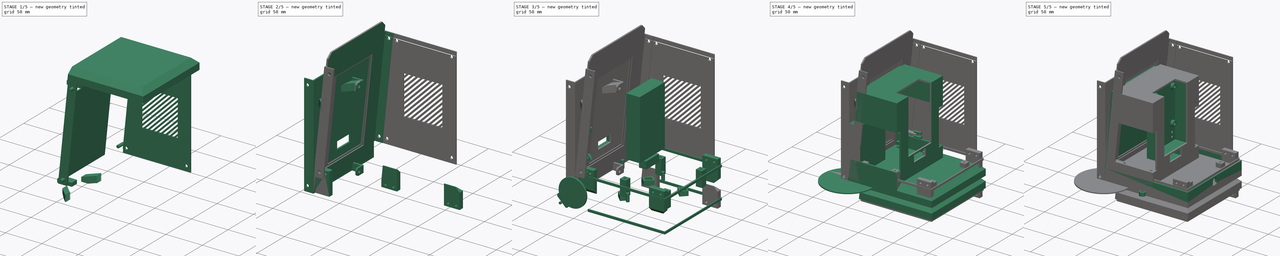
[diagram: build sequence overview — one tinted view per stage of 5, left to right]
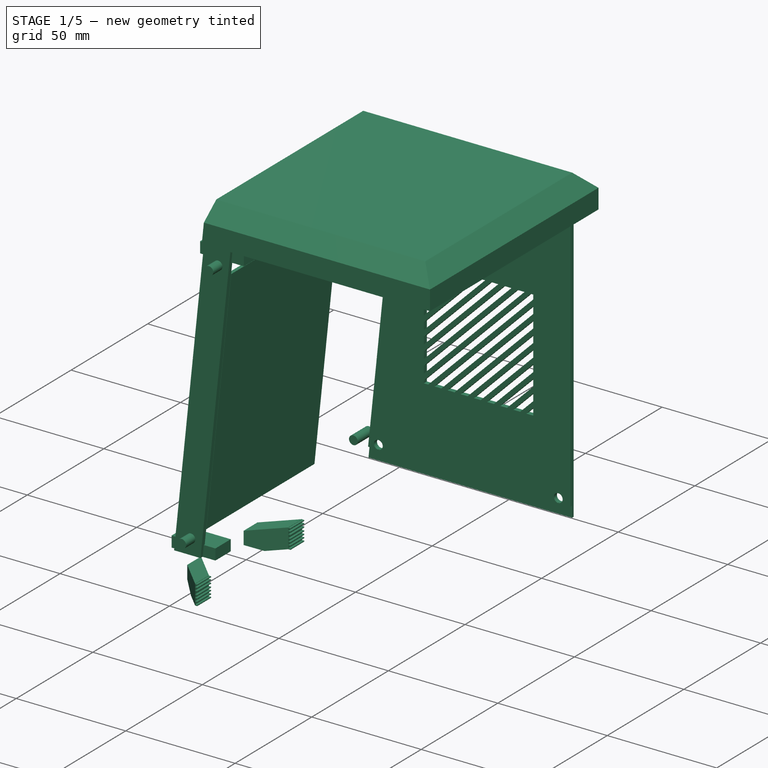
[diagram: stage 1 of 5 — iso view after this stage's code; geometry added in this stage tinted green]
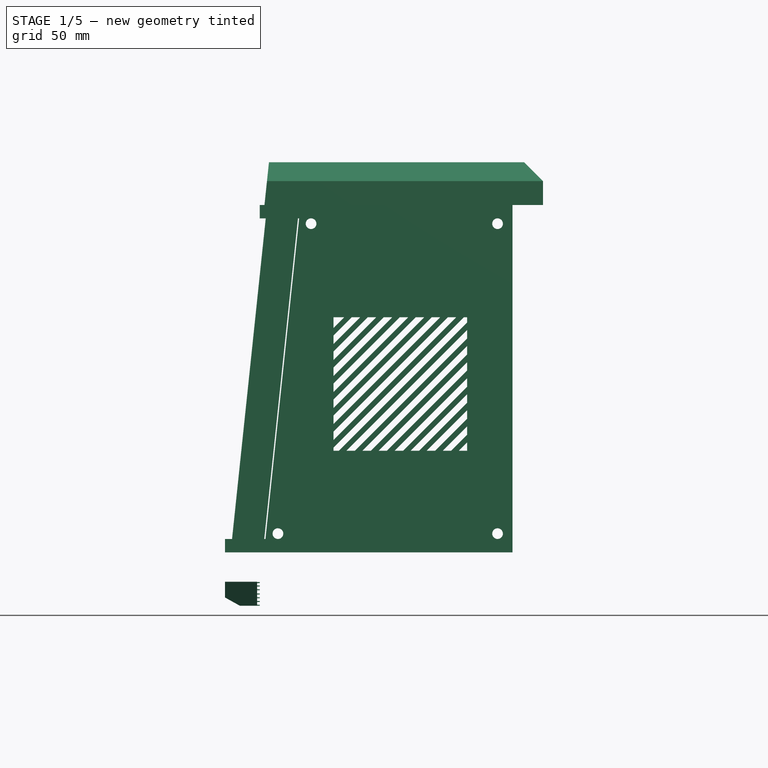
[diagram: stage 1 of 5 — front view after this stage's code; geometry added in this stage tinted green]
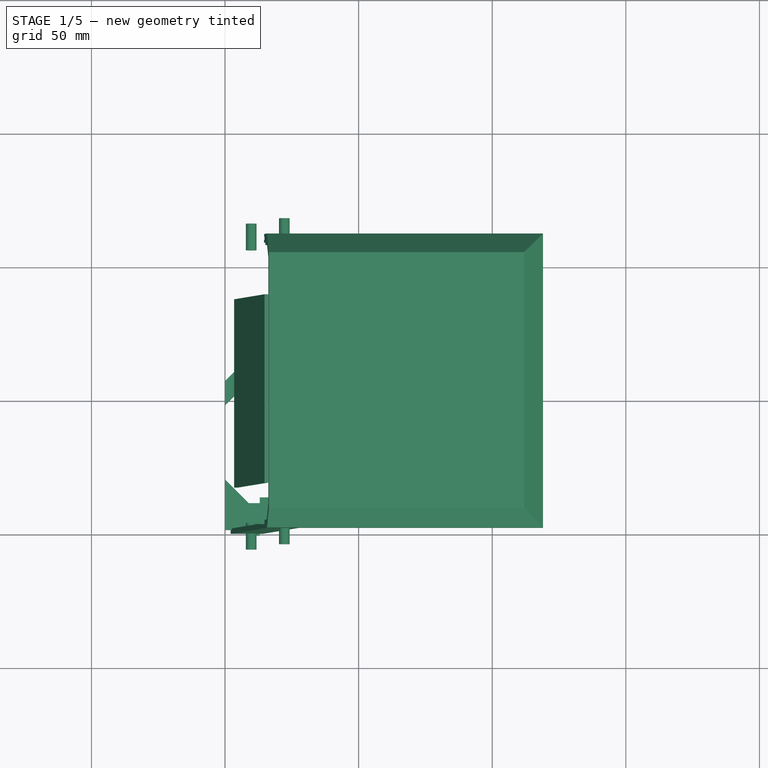
[diagram: stage 1 of 5 — top view after this stage's code; geometry added in this stage tinted green]
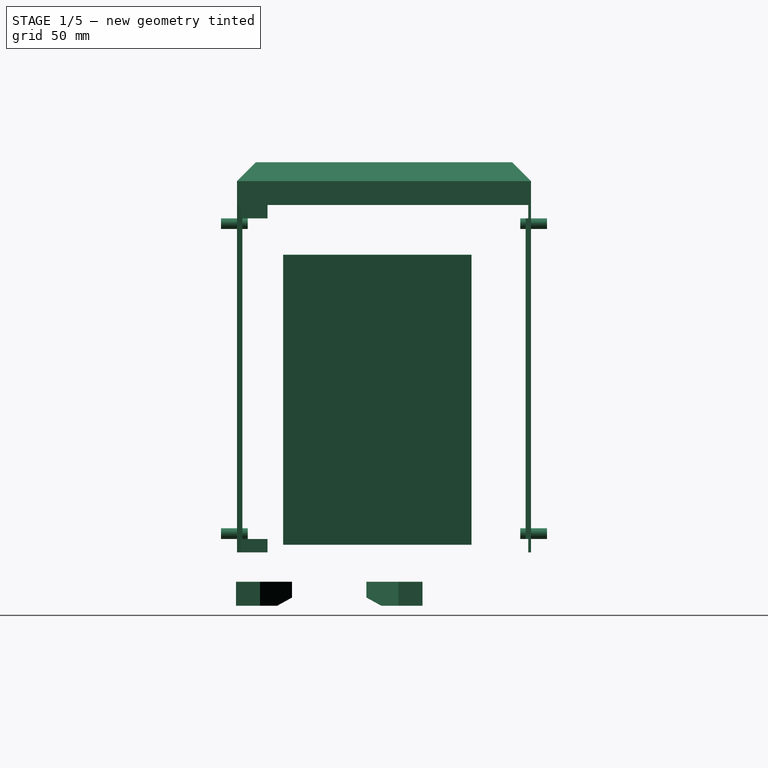
[diagram: stage 1 of 5 — right view after this stage's code; geometry added in this stage tinted green]
FCSTD DOCUMENT  (FreeCAD 0.18R16146 (Git))
Label: mark2
License: All rights reserved
LicenseURL: http://en.wikipedia.org/wiki/All_rights_reserved
objects: Part::Box×97, Part::Cut×69, Part::Cylinder×64, Part::MultiFuse×40, Sketcher::SketchObject×22, PartDesign::Pad×15, Part::Mirroring×15, Part::Feature×14, App::Part×13, PartDesign::Body×12, Part::Chamfer×10, Part::FeaturePython×8, Part::Fillet×7, Part::Wedge×3
note: 391 computed .brp shape members not serialized (recipe doc carries the construction recipe); baked Part::Feature solids carry a one-line shape summary decoded from their .brp

FEATURE [Part::Box] Box066  label="Cube057"
  AttacherType = Attacher::AttachEngine3D
  Height = 18
  Length = 117
  Placement = pos=(0,3,2) rot=(0,0,1;0rad)
  Width = 104
FEATURE [Part::Chamfer] Chamfer008
  Base = -> Box066
  Edges = 3 edges r=6.07: [Edge8,Edge9,Edge11]
FEATURE [Part::Box] Box067  label="Cube058"
  AttacherType = Attacher::AttachEngine3D
  Height = 20
  Length = 120
  Width = 110
FEATURE [Part::Chamfer] Chamfer009
  Base = -> Box067
  Edges = 3 edges r=7.07: [Edge8,Edge9,Edge11]
FEATURE [Part::Cut] Cut063  label="Boden_Cut002"
  Base = -> Chamfer009
  Tool = -> Chamfer008
FEATURE [Sketcher::SketchObject] Sketch014  label="Sketch015"
  MapMode = 5
  Placement = pos=(0,0,0) rot=(1,0,0;1.5708rad)
  Support = -> [XZ_Plane027]
FEATURE [Sketcher::SketchObject] Sketch015  label="Sketch016"
  MapMode = 5
  Placement = pos=(0,0,0) rot=(1,0,0;1.5708rad)
  Support = -> [XZ_Plane027]
FEATURE [Part::Feature] mirror004  label="Deckel002"
  shape: bbox 120 x 110 x 16 mm, 16 faces (baked)
FEATURE [Sketcher::SketchObject] Sketch017  label="Sketch018"
  Placement = pos=(0,0,-166) rot=(1,0,0;1.5708rad)
  sketch-geometry (3):
    g0: LineSegment StartX=0 StartY=0 StartZ=0 EndX=19.7877 EndY=188.268 EndZ=0
    g1: LineSegment StartX=19.7877 StartY=188.268 StartZ=0 EndX=0 EndY=188.268 EndZ=0
    g2: LineSegment StartX=0 StartY=188.268 StartZ=0 EndX=0 EndY=0 EndZ=0
  constraints (7):
    c: Coincident(g0,g1)
    c: Coincident(g1,g2)
    c: Coincident(g2,g0)
    c: Coincident(g0,g-1)
    c: Angle(g0,g2) = 0.10472
    c: Vertical(g2)
    c: Horizontal(g1)
FEATURE [PartDesign::Pad] Pad010
  Length = 110
  Length2 = 100
  Placement = pos=(0,0,-166) rot=(1,0,0;1.5708rad)
  Profile = -> Sketch017
  Reversed = true
  Type = 0
FEATURE [PartDesign::Body] Body008
  Group = -> [Pad010,Sketch014,Sketch015]
  Origin = -> Origin027
  Tip = -> Pad010
FEATURE [Part::Cut] Cut064  label="Deckel_Cut001"
  Base = -> mirror004
  Placement = pos=(-1,0,166) rot=(0,0,1;0rad)
  Tool = -> Body008
FEATURE [Sketcher::SketchObject] Sketch018  label="Sketch019"
  MapMode = 5
  Placement = pos=(0,0,0) rot=(1,0,0;1.5708rad)
  Support = -> [XZ_Plane026]
  sketch-geometry (4):
    g0: LineSegment StartX=0 StartY=0 StartZ=0 EndX=12.06 EndY=0 EndZ=0
    g1: LineSegment StartX=12.06 StartY=0 StartZ=0 EndX=28.1882 EndY=153.45 EndZ=0
    g2: LineSegment StartX=28.1882 StartY=153.45 StartZ=0 EndX=16.1282 EndY=153.45 EndZ=0
    g3: LineSegment StartX=16.1282 StartY=153.45 StartZ=0 EndX=0 EndY=0 EndZ=0
  constraints (10):
    c: Coincident(g0,g1)
    c: Coincident(g1,g2)
    c: Coincident(g2,g3)
    c: Coincident(g3,g0)
    c: Coincident(g0,g-1)
    c: Horizontal(g0)
    c: Horizontal(g2)
    c: Angle(g3,g-2) = 0.10472
    c: Parallel(g3,g1)
    c: Distance(g0) = 12.06
FEATURE [PartDesign::Pad] Pad011
  Length = 2
  Length2 = 100
  Placement = pos=(0,0,0) rot=(1,0,0;1.5708rad)
  Profile = -> Sketch018
  Reversed = true
  Type = 0
FEATURE [Part::FeaturePython] Cutout006  # WARN: FeaturePython — macro-defined, semantics opaque (R4)
  Base = -> Pad011
  Tolerance = 0
  Tool = -> Cut063
FEATURE [Part::Box] Box068  label="Cube059"
  AttacherType = Attacher::AttachEngine3D
  Height = 5
  Length = 20
  Placement = pos=(13,1.4,145) rot=(0,0,1;0rad)
  Width = 10
FEATURE [Part::Box] Box069  label="Cube060"
  AttacherType = Attacher::AttachEngine3D
  Height = 5
  Length = 20
  Placement = pos=(0,1.4,20) rot=(0,0,1;0rad)
  Width = 10
FEATURE [Part::MultiFuse] Fusion034
  Shapes = -> [Box069,Box068]
FEATURE [Part::Cylinder] Cylinder069  label="Front_Loch1"
  Angle = 360
  AttacherType = Attacher::AttachEngine3D
  Height = 10
  Placement = pos=(9.8,4,27) rot=(1,0,0;1.5708rad)
  Radius = 2
FEATURE [Part::Cylinder] Cylinder070  label="Front_Loch2"
  Angle = 360
  AttacherType = Attacher::AttachEngine3D
  Height = 10
  Placement = pos=(22.2,4,143) rot=(1,0,0;1.5708rad)
  Radius = 2
FEATURE [Part::MultiFuse] Fusion036  label="Front_Loch_R"
  Shapes = -> [Cylinder069,Cylinder070]
FEATURE [Part::Mirroring] Part__Mirroring007  label="Front_Loch_R (Mirror #11)"
  Base = (0,0,0)
  Normal = (0,1,0)
  Placement = pos=(0,110,0) rot=(0,0,1;0rad)
  Source = -> Fusion036
FEATURE [Part::MultiFuse] Fusion037  label="Front_Loecher"
  Shapes = -> [Part__Mirroring007,Fusion036]
FEATURE [Part::Box] Box070  label="Disp_Vertiefung"
  AttacherType = Attacher::AttachEngine3D
  Height = 109
  Length = 1.4
  Placement = pos=(3.4,17.25,23) rot=(0,1,0;0.10472rad)
  Width = 70.5
FEATURE [App::Part] Part012  label="Front"
  Group = -> [Box066,Cut065,Box070,Box069,Sketch018,Part__Mirroring007,Cutout004,Fusion035,Cut064,Part__Mirroring006,Cut066,Cylinder070,Box068,Cutout007,Chamfer008,Pad009,Fusion036,mirror004,Sketch013,Pad011,Body008,Cut063,Cutout005,Fusion037,Cylinder069,Fusion034,Chamfer009,Cutout006,Box067,Box071,Cut070,Cut071]
  Origin = -> Origin029
FEATURE [Sketcher::SketchObject] Sketch019  label="Sketch020"
  MapMode = 5
  Support = -> [XY_Plane030]
  sketch-geometry (4):
    g0: LineSegment StartX=0 StartY=20.5912 StartZ=0 EndX=12 EndY=8.59122 EndZ=0
    g1: LineSegment StartX=12 StartY=8.59122 StartZ=0 EndX=12 EndY=-0.408778 EndZ=0
    g2: LineSegment StartX=12 StartY=-0.408778 StartZ=0 EndX=0 EndY=11.5912 EndZ=0
    g3: LineSegment StartX=0 StartY=11.5912 StartZ=0 EndX=0 EndY=20.5912 EndZ=0
  constraints (11):
    c: Coincident(g0,g1)
    c: Coincident(g1,g2)
    c: Coincident(g2,g3)
    c: Coincident(g3,g0)
    c: Vertical(g3)
    c: Parallel(g0,g2)
    c: Angle(g3,g0) = 0.785398
    c: Parallel(g3,g1)
    c: Distance(g1) = 9
    c: DistanceX(g2,g2) = 12
    c: DistanceX(g-1,g0) = 0
FEATURE [PartDesign::Pad] Pad012
  Length = 9
  Length2 = 100
  Profile = -> Sketch019
  Type = 0
FEATURE [PartDesign::Body] Body009
  Group = -> [Sketch019,Pad012]
  Origin = -> Origin030
  Tip = -> Pad012
FEATURE [Sketcher::SketchObject] Sketch020  label="Sketch021"
  MapMode = 5
  Placement = pos=(0,0,0) rot=(1,0,0;1.5708rad)
  Support = -> [XZ_Plane033]
  sketch-geometry (3):
    g0: LineSegment StartX=0 StartY=0 StartZ=0 EndX=0 EndY=3.09591 EndZ=0
    g1: LineSegment StartX=0 StartY=3.09591 StartZ=0 EndX=5.59403 EndY=0 EndZ=0
    g2: LineSegment StartX=5.59403 StartY=0 StartZ=0 EndX=0 EndY=0 EndZ=0
  constraints (6):
    c: Coincident(g0,g1)
    c: Coincident(g1,g2)
    c: Coincident(g2,g0)
    c: Coincident(g0,g-1)
    c: Vertical(g0)
    c: Horizontal(g2)
FEATURE [PartDesign::Pad] Pad013
  Length = 21
  Length2 = 100
  Placement = pos=(0,0,0) rot=(1,0,0;1.5708rad)
  Profile = -> Sketch020
  Reversed = true
  Type = 0
FEATURE [PartDesign::Body] Body010
  Group = -> [Sketch020,Pad013]
  Origin = -> Origin031
  Tip = -> Pad013
FEATURE [Part::Cut] Cut072
  Base = -> Body009
  Tool = -> Body010
FEATURE [Part::Box] Box076  label="Cube067"
  AttacherType = Attacher::AttachEngine3D
  Height = 0.4
  Length = 1
  Placement = pos=(12,-0.4,0) rot=(0,0,1;0rad)
  Width = 9
FEATURE [Part::Box] Box077  label="Cube068"
  AttacherType = Attacher::AttachEngine3D
  Height = 0.4
  Length = 1
  Placement = pos=(12,-0.4,1.4) rot=(0,0,1;0rad)
  Width = 9
FEATURE [Part::Box] Box078  label="Cube069"
  AttacherType = Attacher::AttachEngine3D
  Height = 0.4
  Length = 1
  Placement = pos=(12,-0.4,2.8) rot=(0,0,1;0rad)
  Width = 9
FEATURE [Part::Box] Box079  label="Cube070"
  AttacherType = Attacher::AttachEngine3D
  Height = 0.4
  Length = 1
  Placement = pos=(12,-0.4,4.2) rot=(0,0,1;0rad)
  Width = 9
FEATURE [Part::Box] Box080  label="Cube071"
  AttacherType = Attacher::AttachEngine3D
  Height = 0.4
  Length = 1
  Placement = pos=(12,-0.4,5.8) rot=(0,0,1;0rad)
  Width = 9
FEATURE [Part::Box] Box081  label="Cube072"
  AttacherType = Attacher::AttachEngine3D
  Height = 0.4
  Length = 1
  Placement = pos=(12,-0.4,8.5) rot=(0,0,1;0rad)
  Width = 9
FEATURE [Part::Box] Box082  label="Cube073"
  AttacherType = Attacher::AttachEngine3D
  Height = 0.4
  Length = 1
  Placement = pos=(12,-0.4,7.2) rot=(0,0,1;0rad)
  Width = 9
FEATURE [Part::MultiFuse] Fusion041  label="Support001"
  Shapes = -> [Cut072,Box080,Box082,Box076,Box079,Box081,Box077,Box078]
FEATURE [Part::Mirroring] Part__Mirroring009  label="Support002"
  Base = (0,0,0)
  Normal = (0,1,0)
  Placement = pos=(0,69,0) rot=(0,0,1;0rad)
  Source = -> Fusion041
FEATURE [Part::MultiFuse] Fusion042  label="Support1_2"
  Shapes = -> [Part__Mirroring009,Fusion041]
FEATURE [App::Part] Part011  label="Disp"
  Group = -> [Fusion040,Box073,Cut069,Fusion039,Cylinder072,Fillet007,Box075,Fillet008,Cut068,Cylinder071,Box074,Box072,Fusion038,Part__Mirroring008,Body009,Body010,Cut072,Box076,Box077,Box078,Box079,Box080,Box081,Box082,Fusion041,Part__Mirroring009,Fusion042,Part__Mirroring010]
  Origin = -> Origin028
  Placement = pos=(2.5,18.25,24) rot=(0,1,0;0.10472rad)
FEATURE [Part::Box] Box083  label="Cube074"
  AttacherType = Attacher::AttachEngine3D
  Height = 130
  Length = 2
  Width = 93
FEATURE [PartDesign::Body] Body011
  Origin = -> Origin034
FEATURE [Sketcher::SketchObject] Sketch021  label="Sketch022"
  MapMode = 5
  Placement = pos=(0,0,0) rot=(0.57735,0.57735,0.57735;2.0944rad)
  Support = -> [YZ_Plane034]
  sketch-geometry (3):
    g0: LineSegment StartX=0 StartY=0 StartZ=0 EndX=13.6615 EndY=129.981 EndZ=0
    g1: LineSegment StartX=13.6615 StartY=129.981 StartZ=0 EndX=0 EndY=129.981 EndZ=0
    g2: LineSegment StartX=0 StartY=129.981 StartZ=0 EndX=0 EndY=0 EndZ=0
  constraints (7):
    c: Coincident(g0,g1)
    c: Coincident(g1,g2)
    c: Coincident(g2,g0)
    c: Coincident(g0,g-1)
    c: Vertical(g2)
    c: Horizontal(g1)
    c: Angle(g0,g2) = 0.10472
FEATURE [PartDesign::Pad] Pad014
  Length = 5
  Length2 = 100
  Placement = pos=(0,0,0) rot=(0.57735,0.57735,0.57735;2.0944rad)
  Profile = -> Sketch021
  Type = 0
FEATURE [Part::Cut] Cut073  label="Seitenwand"
  Base = -> Box083
  Tool = -> Pad014
FEATURE [Part::Box] Box084  label="Cube075"
  AttacherType = Attacher::AttachEngine3D
  Height = 80
  Length = 2
  Placement = pos=(0,0,0) rot=(-1,0,0;0.785398rad)
  Width = 2
FEATURE [Part::Box] Box085  label="Cube076"
  AttacherType = Attacher::AttachEngine3D
  Height = 80
  Length = 2
  Placement = pos=(0,6,0) rot=(-1,0,0;0.785398rad)
  Width = 2
FEATURE [Part::Box] Box086  label="Cube077"
  AttacherType = Attacher::AttachEngine3D
  Height = 80
  Length = 2
  Placement = pos=(0,12,0) rot=(-1,0,0;0.785398rad)
  Width = 2
FEATURE [Part::Box] Box087  label="Cube078"
  AttacherType = Attacher::AttachEngine3D
  Height = 80
  Length = 2
  Placement = pos=(0,18,0) rot=(-1,0,0;0.785398rad)
  Width = 2
FEATURE [Part::Box] Box088  label="Cube079"
  AttacherType = Attacher::AttachEngine3D
  Height = 80
  Length = 2
  Placement = pos=(0,24,0) rot=(-1,0,0;0.785398rad)
  Width = 2
FEATURE [Part::Box] Box089  label="Cube080"
  AttacherType = Attacher::AttachEngine3D
  Height = 80
  Length = 2
  Placement = pos=(0,30,0) rot=(-1,0,0;0.785398rad)
  Width = 2
FEATURE [Part::Box] Box090  label="Cube081"
  AttacherType = Attacher::AttachEngine3D
  Height = 80
  Length = 2
  Placement = pos=(0,36,0) rot=(-1,0,0;0.785398rad)
  Width = 2
FEATURE [Part::Box] Box091  label="Cube082"
  AttacherType = Attacher::AttachEngine3D
  Height = 80
  Length = 2
  Placement = pos=(0,42,0) rot=(-1,0,0;0.785398rad)
  Width = 2
FEATURE [Part::Box] Box092  label="Cube083"
  AttacherType = Attacher::AttachEngine3D
  Height = 80
  Length = 2
  Placement = pos=(0,48,0) rot=(-1,0,0;0.785398rad)
  Width = 2
FEATURE [Part::Box] Box093  label="Cube084"
  AttacherType = Attacher::AttachEngine3D
  Height = 80
  Length = 2
  Placement = pos=(0,54,0) rot=(-1,0,0;0.785398rad)
  Width = 2
FEATURE [Part::Box] Box094  label="Cube085"
  AttacherType = Attacher::AttachEngine3D
  Height = 80
  Length = 2
  Placement = pos=(0,60,0) rot=(-1,0,0;0.785398rad)
  Width = 2
FEATURE [Part::Box] Box095  label="Cube086"
  AttacherType = Attacher::AttachEngine3D
  Height = 80
  Length = 2
  Placement = pos=(0,66,0) rot=(-1,0,0;0.785398rad)
  Width = 2
FEATURE [Part::Box] Box096  label="Cube087"
  AttacherType = Attacher::AttachEngine3D
  Height = 80
  Length = 2
  Placement = pos=(0,72,0) rot=(-1,0,0;0.785398rad)
  Width = 2
FEATURE [Part::Box] Box097  label="Cube088"
  AttacherType = Attacher::AttachEngine3D
  Height = 80
  Length = 2
  Placement = pos=(0,78,0) rot=(-1,0,0;0.785398rad)
  Width = 2
FEATURE [Part::Box] Box098  label="Cube089"
  AttacherType = Attacher::AttachEngine3D
  Height = 50
  Length = 2
  Placement = pos=(0,46,0) rot=(0,0,1;0rad)
  Width = 50
FEATURE [Part::Box] Box099  label="Cube090"
  AttacherType = Attacher::AttachEngine3D
  Height = 80
  Length = 2
  Placement = pos=(0,84,0) rot=(-1,0,0;0.785398rad)
  Width = 2
FEATURE [Part::Box] Box100  label="Cube091"
  AttacherType = Attacher::AttachEngine3D
  Height = 80
  Length = 2
  Placement = pos=(0,90,0) rot=(-1,0,0;0.785398rad)
  Width = 2
FEATURE [Part::Box] Box101  label="Cube092"
  AttacherType = Attacher::AttachEngine3D
  Height = 80
  Length = 2
  Placement = pos=(0,96,0) rot=(-1,0,0;0.785398rad)
  Width = 2
FEATURE [Part::MultiFuse] Fusion043
  Shapes = -> [Box099,Box100,Box101,Box097,Box096,Box095,Box094,Box093,Box092,Box091,Box090,Box089,Box088,Box087,Box086,Box084,Box085]
FEATURE [Part::Cut] Cut074  label="Schlitze"
  Base = -> Box098
  Placement = pos=(0,-20,38) rot=(0,0,1;0rad)
  Tool = -> Fusion043
FEATURE [Part::Cut] Cut075  label="Seitenwand_Schlitze"
  Base = -> Cut073
  Tool = -> Cut074
FEATURE [Part::Box] Box102  label="Cube093"
  AttacherType = Attacher::AttachEngine3D
  Height = 5
  Length = 1
  Width = 100
FEATURE [Part::Box] Box103  label="Cube094"
  AttacherType = Attacher::AttachEngine3D
  Height = 5
  Length = 1
  Placement = pos=(0,0,125) rot=(0,0,1;0rad)
  Width = 100
FEATURE [Part::MultiFuse] Fusion044  label="Anschlag"
  Shapes = -> [Box102,Box103]
FEATURE [Part::Cut] Cut076  label="Seitenw_Schlitze_Anschlag"
  Base = -> Cut075
  Placement = pos=(14.6,2,20) rot=(0,0,-1;1.5708rad)
  Tool = -> Fusion044
FEATURE [Part::Cylinder] Cylinder073  label="Cylinder042"
  Angle = 360
  AttacherType = Attacher::AttachEngine3D
  Height = 10
  Placement = pos=(19.8,0,27) rot=(1,0,0;1.5708rad)
  Radius = 2
FEATURE [Part::Cylinder] Cylinder074  label="Cylinder043"
  Angle = 360
  AttacherType = Attacher::AttachEngine3D
  Height = 10
  Placement = pos=(102,0,27) rot=(1,0,0;1.5708rad)
  Radius = 2
FEATURE [Part::Cylinder] Cylinder075  label="Cylinder044"
  Angle = 360
  AttacherType = Attacher::AttachEngine3D
  Height = 10
  Placement = pos=(102,0,143) rot=(1,0,0;1.5708rad)
  Radius = 2
FEATURE [Part::Cylinder] Cylinder076  label="Cylinder045"
  Angle = 360
  AttacherType = Attacher::AttachEngine3D
  Height = 10
  Placement = pos=(32.2,0,143) rot=(1,0,0;1.5708rad)
  Radius = 2
FEATURE [Part::MultiFuse] Fusion045  label="Loecher"
  Placement = pos=(0,5,0) rot=(0,0,1;0rad)
  Shapes = -> [Cylinder076,Cylinder074,Cylinder073,Cylinder075]
FEATURE [Part::Cut] Cut077  label="Seitenw_Schlitze_Anschl_Loecher"
  Base = -> Cut076
  Tool = -> Fusion045
FEATURE [Part::Mirroring] Part__Mirroring011  label="Seitenw_Schlitze_Anschl_Loecher (Mirror #15)"
  Base = (0,0,0)
  Normal = (0,1,0)
  Placement = pos=(0,110,0) rot=(0,0,1;0rad)
  Source = -> Cut077
FEATURE [App::Part] Part013  label="Seite"
  Group = -> [Box083,Body011,Sketch021,Pad014,Cut073,Box093,Box095,Box097,Box096,Box098,Box100,Box092,Box089,Box090,Box101,Fusion043,Box087,Box085,Box084,Box088,Box094,Box091,Box099,Box086,Cut074,Cut075,Box103,Box102,Fusion044,Cut076,Cylinder073,Cylinder074,Cylinder075,Cylinder076,Fusion045,Cut077,Part__Mirroring011]
  Origin = -> Origin032
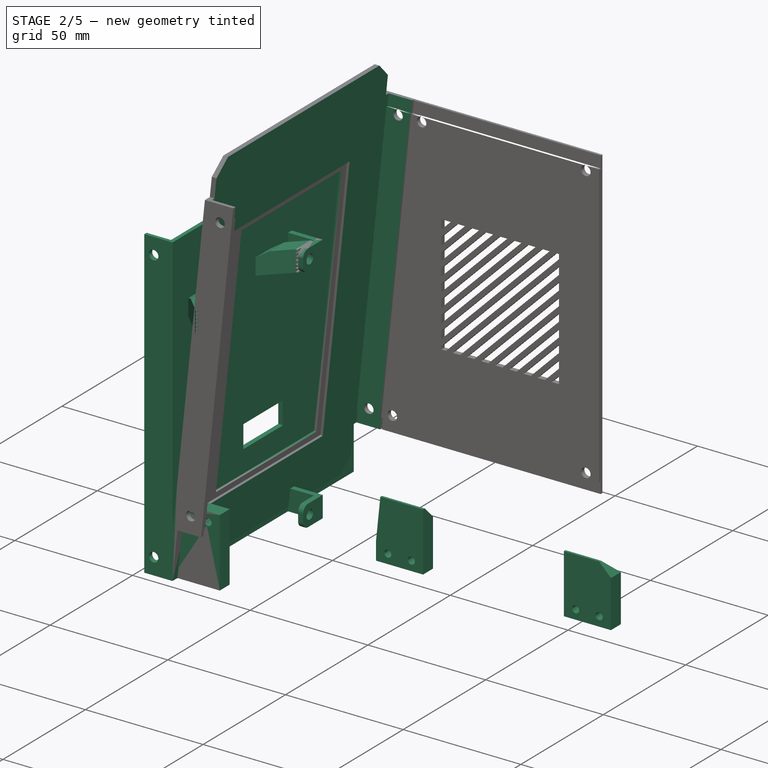
[diagram: stage 2 of 5 — iso view after this stage's code; geometry added in this stage tinted green]
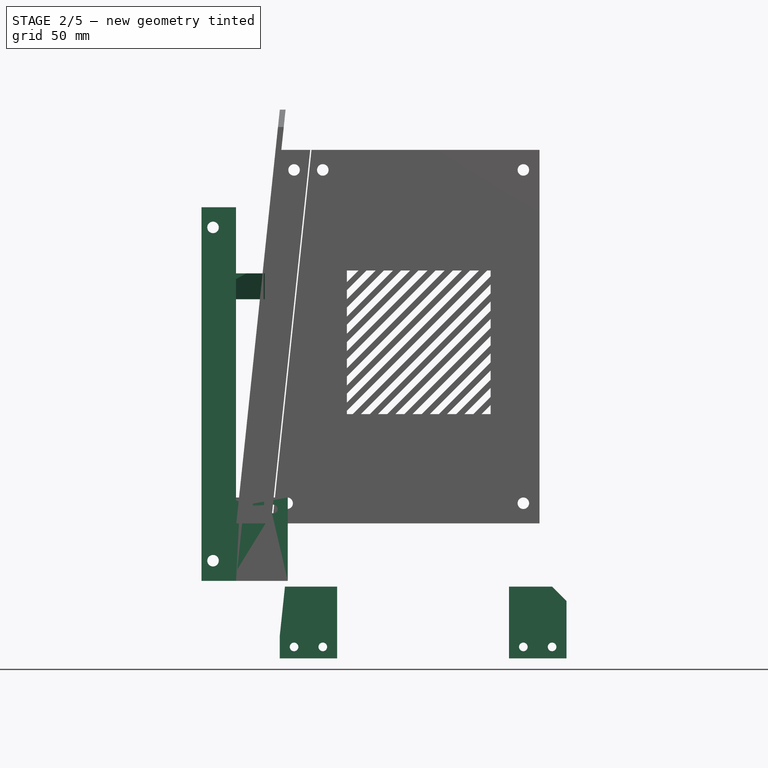
[diagram: stage 2 of 5 — front view after this stage's code; geometry added in this stage tinted green]
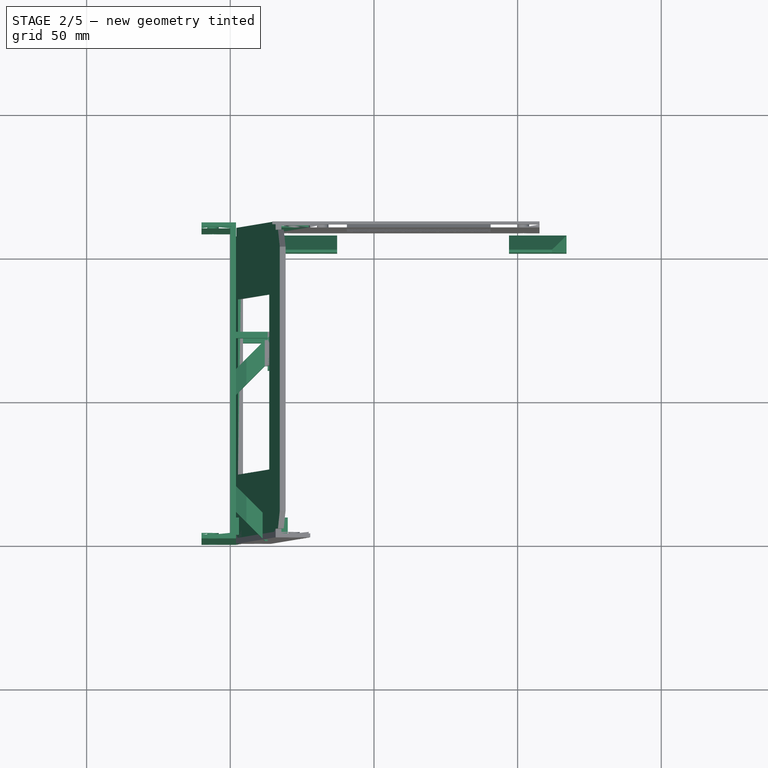
[diagram: stage 2 of 5 — top view after this stage's code; geometry added in this stage tinted green]
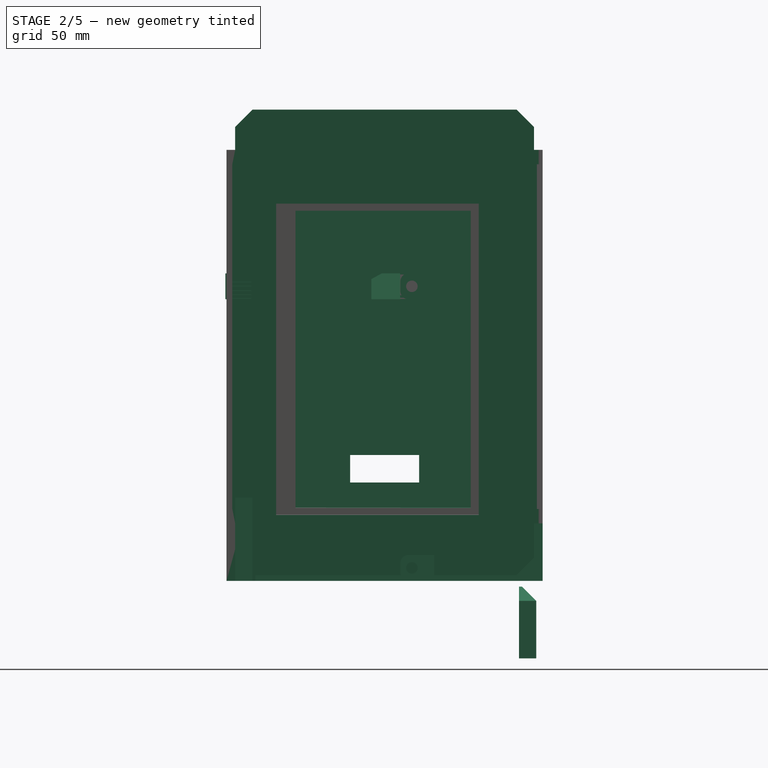
[diagram: stage 2 of 5 — right view after this stage's code; geometry added in this stage tinted green]
FEATURE [Part::Box] Box052  label="Cube044"
  AttacherType = Attacher::AttachEngine3D
  Height = 130
  Length = 2
  Width = 110
FEATURE [Part::Box] Box053  label="Cube045"
  AttacherType = Attacher::AttachEngine3D
  Height = 130
  Length = 10
  Placement = pos=(-10,0,0) rot=(0,0,1;0rad)
  Width = 2
FEATURE [Part::Box] Box054  label="Cube046"
  AttacherType = Attacher::AttachEngine3D
  Height = 130
  Length = 10
  Placement = pos=(-10,108,0) rot=(0,0,1;0rad)
  Width = 2
FEATURE [Part::MultiFuse] Fusion023  label="Ruecken_Basis"
  Shapes = -> [Box052,Box054,Box053]
FEATURE [Part::Box] Box055  label="Cube047"
  AttacherType = Attacher::AttachEngine3D
  Height = 5
  Length = 10.4
  Placement = pos=(-10,1.4,0) rot=(0,0,1;0rad)
  Width = 107.2
FEATURE [Part::Box] Box056  label="Cube048"
  AttacherType = Attacher::AttachEngine3D
  Height = 5
  Length = 10.4
  Placement = pos=(-10,1.4,125) rot=(0,0,1;0rad)
  Width = 107.2
FEATURE [Part::MultiFuse] Fusion024
  Shapes = -> [Box056,Box055]
FEATURE [Part::Cut] Cut052  label="Ruecken_Cut"
  Base = -> Fusion023
  Tool = -> Fusion024
FEATURE [Part::Box] Box059  label="Ruecken_Loch"
  AttacherType = Attacher::AttachEngine3D
  Height = 9.6
  Length = 10
  Placement = pos=(-5,43,34.2) rot=(0,0,1;0rad)
  Width = 24
FEATURE [Part::Cut] Cut054  label="Ruecken_Loch_Cut"
  Base = -> Cut052
  Tool = -> Box059
FEATURE [Part::Box] Box062  label="Cube053"
  AttacherType = Attacher::AttachEngine3D
  Height = 29
  Length = 20
  Placement = pos=(0,3,0) rot=(0,0,1;0rad)
  Width = 6
FEATURE [Part::Cylinder] Cylinder058  label="Cylinder033"
  Angle = 360
  AttacherType = Attacher::AttachEngine3D
  Height = 10
  Placement = pos=(15,10,25) rot=(1,0,0;1.5708rad)
  Radius = 1.5
FEATURE [Part::Cylinder] Cylinder059  label="Cylinder034"
  Angle = 360
  AttacherType = Attacher::AttachEngine3D
  Height = 10
  Placement = pos=(5,10,25) rot=(1,0,0;1.5708rad)
  Radius = 1.5
FEATURE [Part::MultiFuse] Fusion027
  Shapes = -> [Cylinder058,Cylinder059]
FEATURE [Part::Cut] Cut057
  Base = -> Box062
  Tool = -> Fusion027
FEATURE [Sketcher::SketchObject] Sketch011  label="Sketch012"
  MapMode = 5
  Placement = pos=(0,0,0) rot=(1,0,0;1.5708rad)
  Support = -> [XZ_Plane023]
  sketch-geometry (4):
    g0: LineSegment StartX=4e-16 StartY=0 StartZ=0 EndX=2.01 EndY=0 EndZ=0
    g1: LineSegment StartX=2.01 StartY=0 StartZ=0 EndX=5.87695 EndY=36.7916 EndZ=0
    g2: LineSegment StartX=5.87695 StartY=36.7916 StartZ=0 EndX=3.86695 EndY=36.7916 EndZ=0
    g3: LineSegment StartX=3.86695 StartY=36.7916 StartZ=0 EndX=4e-16 EndY=0 EndZ=0
  constraints (10):
    c: Coincident(g0,g1)
    c: Coincident(g1,g2)
    c: Coincident(g2,g3)
    c: Coincident(g3,g0)
    c: Coincident(g0,g-1)
    c: Horizontal(g0)
    c: Horizontal(g2)
    c: Angle(g3,g-2) = 0.10472
    c: Parallel(g3,g1)
    c: Distance(g0) = 2.01
FEATURE [PartDesign::Pad] Pad007
  Length = 10
  Length2 = 100
  Placement = pos=(0,0,0) rot=(1,0,0;1.5708rad)
  Profile = -> Sketch011
  Reversed = true
  Type = 0
FEATURE [App::Part] Part001  label="Boden"
  Group = -> [Box009,Chamfer001,Box010,Chamfer002,Sketch002,Pad002,Cylinder001,Box011,Cylinder002,Cut007,Fusion002,Cut006,Cut008,Cylinder046,Box036,Cut039,Cylinder048,Box037,Cut040,Cylinder049,Box038,Cut041,Cylinder050,Box039,Cut042,Fusion021,Cut048,Box049,Box048,Body003,Cut049,Box061,Fusion026,Cut056,Cylinder056,Cylinder057,Chamfer005,Cut057,Cylinder058,Fusion027,Box062,Cylinder059,Chamfer006,mirror002,+4 more]
  Origin = -> Origin007
FEATURE [Part::Cylinder] Cylinder060  label="Cylinder035"
  Angle = 360
  AttacherType = Attacher::AttachEngine3D
  Height = 10
  Placement = pos=(15,10,4) rot=(1,0,0;1.5708rad)
  Radius = 1.5
FEATURE [Part::Box] Box064  label="Cube055"
  AttacherType = Attacher::AttachEngine3D
  Height = 25
  Length = 20
  Placement = pos=(0,3,0) rot=(0,0,1;0rad)
  Width = 6
FEATURE [Part::Cylinder] Cylinder062  label="Cylinder037"
  Angle = 360
  AttacherType = Attacher::AttachEngine3D
  Height = 10
  Placement = pos=(5,10,4) rot=(1,0,0;1.5708rad)
  Radius = 1.5
FEATURE [Part::MultiFuse] Fusion030
  Shapes = -> [Cylinder060,Cylinder062]
FEATURE [Part::Cut] Cut059
  Base = -> Box064
  Tool = -> Fusion030
FEATURE [Part::Cylinder] Cylinder063  label="Cylinder038"
  Angle = 360
  AttacherType = Attacher::AttachEngine3D
  Height = 10
  Placement = pos=(15,10,4) rot=(1,0,0;1.5708rad)
  Radius = 1.5
FEATURE [Part::Box] Box065  label="Cube056"
  AttacherType = Attacher::AttachEngine3D
  Height = 25
  Length = 20
  Placement = pos=(0,3,0) rot=(0,0,1;0rad)
  Width = 6
FEATURE [Part::Cylinder] Cylinder064  label="Cylinder039"
  Angle = 360
  AttacherType = Attacher::AttachEngine3D
  Height = 10
  Placement = pos=(5,10,4) rot=(1,0,0;1.5708rad)
  Radius = 1.5
FEATURE [Part::MultiFuse] Fusion031
  Shapes = -> [Cylinder063,Cylinder064]
FEATURE [Part::Cut] Cut060
  Base = -> Box065
  Placement = pos=(17,0,-27) rot=(0,0,1;0rad)
  Tool = -> Fusion031
FEATURE [Part::Chamfer] Chamfer  label="Deckel_Befest001"
  Base = -> Cut059
  Edges = 2 edges r=5: [Edge7,Edge11]
  Placement = pos=(97,-0.8,-27) rot=(0,0,1;0rad)
FEATURE [Part::Chamfer] Chamfer007
  Base = -> Cut060
  Edges = 1 edges r=5: [Edge7]
FEATURE [Sketcher::SketchObject] Sketch012  label="Sketch013"
  MapMode = 5
  Placement = pos=(0,0,0) rot=(1,0,0;1.5708rad)
  Support = -> [XZ_Plane024]
  sketch-geometry (4):
    g0: LineSegment StartX=0 StartY=0 StartZ=0 EndX=2.01 EndY=0 EndZ=0
    g1: LineSegment StartX=2.01 StartY=0 StartZ=0 EndX=21.3585 EndY=184.089 EndZ=0
    g2: LineSegment StartX=21.3585 StartY=184.089 StartZ=0 EndX=19.3485 EndY=184.089 EndZ=0
    g3: LineSegment StartX=19.3485 StartY=184.089 StartZ=0 EndX=0 EndY=0 EndZ=0
  constraints (10):
    c: Coincident(g0,g1)
    c: Coincident(g1,g2)
    c: Coincident(g2,g3)
    c: Coincident(g3,g0)
    c: Coincident(g0,g-1)
    c: Horizontal(g0)
    c: Horizontal(g2)
    c: Angle(g3,g-2) = 0.10472
    c: Parallel(g3,g1)
    c: Distance(g2) = 2.01
FEATURE [PartDesign::Pad] Pad008
  Length = 10
  Length2 = 100
  Placement = pos=(0,0,0) rot=(1,0,0;1.5708rad)
  Profile = -> Sketch012
  Reversed = true
  Type = 0
FEATURE [PartDesign::Body] Body006
  Group = -> [Sketch012,Pad008]
  Origin = -> Origin024
  Placement = pos=(0,0,-162) rot=(0,0,1;0rad)
  Tip = -> Pad008
FEATURE [Part::Cut] Cut061  label="Deckel_Befest002"
  Base = -> Chamfer007
  Placement = pos=(0.2,-0.8,0) rot=(0,0,1;0rad)
  Tool = -> Body006
FEATURE [Part::Mirroring] Part__Mirroring004  label="Deckel_Befest001 (Mirror #8)"
  Base = (0,0,0)
  Normal = (0,1,0)
  Placement = pos=(0,110,0) rot=(0,0,1;0rad)
  Source = -> Chamfer
FEATURE [Part::Mirroring] Part__Mirroring005  label="Deckel_Befest002 (Mirror #9)"
  Base = (0,0,0)
  Normal = (0,1,0)
  Placement = pos=(0,110,0) rot=(0,0,1;0rad)
  Source = -> Cut061
FEATURE [Part::MultiFuse] Fusion032  label="Deckel_Befestigungen"
  Shapes = -> [Part__Mirroring004,Part__Mirroring005]
FEATURE [App::Part] Part008  label="Deckel"
  Group = -> [Box034,Chamfer003,Chamfer004,Box035,Cut032,mirror,mirror001,Sketch005,Body002,Cut033,Cylinder035,Cylinder034,Cylinder041,Cylinder038,Cut035,Cylinder036,Cut036,Cylinder037,Cut037,Cylinder039,Cylinder040,Cut034,Fusion018,Cylinder042,Cylinder043,Cylinder044,Cylinder045,Fusion019,Cut038,Cut044,Box042,Box043,Cut045,Cut047,Box045,Box040,Box044,Box046,Box047,Box041,Cut046,Fusion022,Box050,Box051,Cut050,+20 more]
  Origin = -> Origin017
  Placement = pos=(0,0,166) rot=(0,0,1;0rad)
FEATURE [Part::Cylinder] Cylinder065  label="Rueck_Loch001"
  Angle = 360
  AttacherType = Attacher::AttachEngine3D
  Height = 10
  Placement = pos=(-6,5,7) rot=(1,0,0;1.5708rad)
  Radius = 2
FEATURE [Part::Cylinder] Cylinder066  label="Rueck_Loch002"
  Angle = 360
  AttacherType = Attacher::AttachEngine3D
  Height = 10
  Placement = pos=(-6,5,123) rot=(1,0,0;1.5708rad)
  Radius = 2
FEATURE [Part::Cylinder] Cylinder067  label="Rueck_Loch003"
  Angle = 360
  AttacherType = Attacher::AttachEngine3D
  Height = 10
  Placement = pos=(-6,115,7) rot=(1,0,0;1.5708rad)
  Radius = 2
FEATURE [Part::Cylinder] Cylinder068  label="Rueck_Loch004"
  Angle = 360
  AttacherType = Attacher::AttachEngine3D
  Height = 10
  Placement = pos=(-6,115,123) rot=(1,0,0;1.5708rad)
  Radius = 2
FEATURE [Part::MultiFuse] Fusion033  label="Rueck_Loecher"
  Shapes = -> [Cylinder065,Cylinder066,Cylinder068,Cylinder067]
FEATURE [Part::Cut] Cut062  label="Ruecken_Loch_Cut_Loecher"
  Base = -> Cut054
  Tool = -> Fusion033
FEATURE [App::Part] Part009  label="Ruecken"
  Group = -> [Box052,Box053,Box054,Fusion023,Box055,Fusion024,Box056,Cut052,Box057,Box058,Cut053,Box059,Cut054,Cylinder065,Cylinder066,Cylinder067,Cylinder068,Fusion033,Cut062]
  Origin = -> Origin022
  Placement = pos=(118,0,20) rot=(0,0,1;0rad)
FEATURE [PartDesign::Body] Body007  label="Body007 "
  Origin = -> Origin026
FEATURE [Sketcher::SketchObject] Sketch013  label="Sketch014"
  MapMode = 5
  Placement = pos=(0,0,0) rot=(1,0,0;1.5708rad)
  Support = -> [XZ_Plane026]
  sketch-geometry (4):
    g0: LineSegment StartX=0 StartY=0 StartZ=0 EndX=2.011 EndY=0 EndZ=0
    g1: LineSegment StartX=2.011 StartY=0 StartZ=0 EndX=19.4463 EndY=165.886 EndZ=0
    g2: LineSegment StartX=19.4463 StartY=165.886 StartZ=0 EndX=17.4353 EndY=165.886 EndZ=0
    g3: LineSegment StartX=17.4353 StartY=165.886 StartZ=0 EndX=0 EndY=0 EndZ=0
  constraints (11):
    c: Coincident(g0,g1)
    c: Coincident(g1,g2)
    c: Coincident(g2,g3)
    c: Coincident(g3,g0)
    c: Coincident(g0,g-1)
    c: Horizontal(g0)
    c: Angle(g3,g-2) = 0.10472
    c: Parallel(g3,g1)
    c: Distance(g0) = 2.011
    c: Horizontal(g2)
    c: Distance(g3) = 166.8
FEATURE [PartDesign::Pad] Pad009
  Length = 110
  Length2 = 100
  Placement = pos=(0,0,0) rot=(1,0,0;1.5708rad)
  Profile = -> Sketch013
  Reversed = true
  Type = 0
FEATURE [Part::FeaturePython] Cutout004  # WARN: FeaturePython — macro-defined, semantics opaque (R4)
  Base = -> Pad009
  Tolerance = 0
  Tool = -> Cut063
FEATURE [Part::FeaturePython] Cutout005  label="FrontDeckel"  # WARN: FeaturePython — macro-defined, semantics opaque (R4)
  Base = -> Cutout004
  Tolerance = 0
  Tool = -> Cut064
FEATURE [Part::FeaturePython] Cutout007  # WARN: FeaturePython — macro-defined, semantics opaque (R4)
  Base = -> Cutout006
  Tolerance = 0
  Tool = -> Cut064
FEATURE [Part::Cut] Cut065
  Base = -> Cutout007
  Tool = -> Fusion034
FEATURE [Part::Mirroring] Part__Mirroring006  label="Cut065 (Mirror #10)"
  Base = (0,0,0)
  Normal = (0,1,0)
  Placement = pos=(0,110,0) rot=(0,0,1;0rad)
  Source = -> Cut065
FEATURE [Part::MultiFuse] Fusion035
  Shapes = -> [Part__Mirroring006,Cut065,Cutout005]
FEATURE [Part::Cut] Cut066  label="Front_Loecher_Cut"
  Base = -> Fusion035
  Tool = -> Fusion037
FEATURE [Part::Box] Box071  label="Disp_Loch"
  AttacherType = Attacher::AttachEngine3D
  Height = 104
  Length = 6
  Placement = pos=(2.4,24,25.5) rot=(0,1,0;0.10472rad)
  Width = 61
FEATURE [Part::Box] Box072  label="Cube063"
  AttacherType = Attacher::AttachEngine3D
  Height = 9
  Length = 11
  Placement = pos=(2,0,0) rot=(0,0,1;0rad)
  Width = 2.2
FEATURE [Part::Box] Box073  label="Cube064"
  AttacherType = Attacher::AttachEngine3D
  Height = 9
  Length = 2.2
  Placement = pos=(13,0,0) rot=(0,0,1;0rad)
  Width = 11.8
FEATURE [Part::Cylinder] Cylinder071  label="Cylinder040"
  Angle = 360
  AttacherType = Attacher::AttachEngine3D
  Height = 10
  Placement = pos=(12,7.8,4.5) rot=(0,1,0;1.5708rad)
  Radius = 2
FEATURE [Part::Fillet] Fillet007
  Base = -> Box073
  Edges = 2 edges r=2.8: [Edge11,Edge12]
FEATURE [Part::Cut] Cut068
  Base = -> Fillet007
  Tool = -> Cylinder071
FEATURE [Part::MultiFuse] Fusion038  label="Front_Halter001"
  Placement = pos=(0,2.2,0) rot=(0,0,1;0rad)
  Shapes = -> [Box072,Cut068]
FEATURE [Part::Box] Box074  label="Cube065"
  AttacherType = Attacher::AttachEngine3D
  Height = 9
  Length = 2.2
  Placement = pos=(13,0,0) rot=(0,0,1;0rad)
  Width = 11.8
FEATURE [Part::Fillet] Fillet008
  Base = -> Box074
  Edges = 2 edges r=2.8: [Edge11,Edge12]
FEATURE [Part::Cylinder] Cylinder072  label="Cylinder041"
  Angle = 360
  AttacherType = Attacher::AttachEngine3D
  Height = 10
  Placement = pos=(12,7.8,4.5) rot=(0,1,0;1.5708rad)
  Radius = 2
FEATURE [Part::Cut] Cut069
  Base = -> Fillet008
  Tool = -> Cylinder072
FEATURE [Part::Box] Box075  label="Cube066"
  AttacherType = Attacher::AttachEngine3D
  Height = 9
  Length = 11
  Placement = pos=(2,0,0) rot=(0,0,1;0rad)
  Width = 2.2
FEATURE [Part::MultiFuse] Fusion039  label="Front_Halter002"
  Placement = pos=(0,2.2,98) rot=(0,0,1;0rad)
  Shapes = -> [Box075,Cut069]
FEATURE [Part::MultiFuse] Fusion040  label="Halter001"
  Placement = pos=(0,-6,0) rot=(0,0,1;0rad)
  Shapes = -> [Fusion038,Fusion039]
FEATURE [Part::Mirroring] Part__Mirroring008  label="Halter002"
  Base = (0,0,0)
  Normal = (0,1,0)
  Placement = pos=(0,68.5,0) rot=(0,0,1;0rad)
  Source = -> Fusion040
FEATURE [Part::Cut] Cut070  label="Front_DispVertief"
  Base = -> Cut066
  Tool = -> Box070
FEATURE [Part::Cut] Cut071  label="Front_Disp_Vertief_Loch"
  Base = -> Cut070
  Tool = -> Box071
FEATURE [Part::Mirroring] Part__Mirroring010  label="Support3_4"
  Base = (0,0,0)
  Normal = (0,0,1)
  Placement = pos=(0,0,107) rot=(0,0,1;0rad)
  Source = -> Fusion042
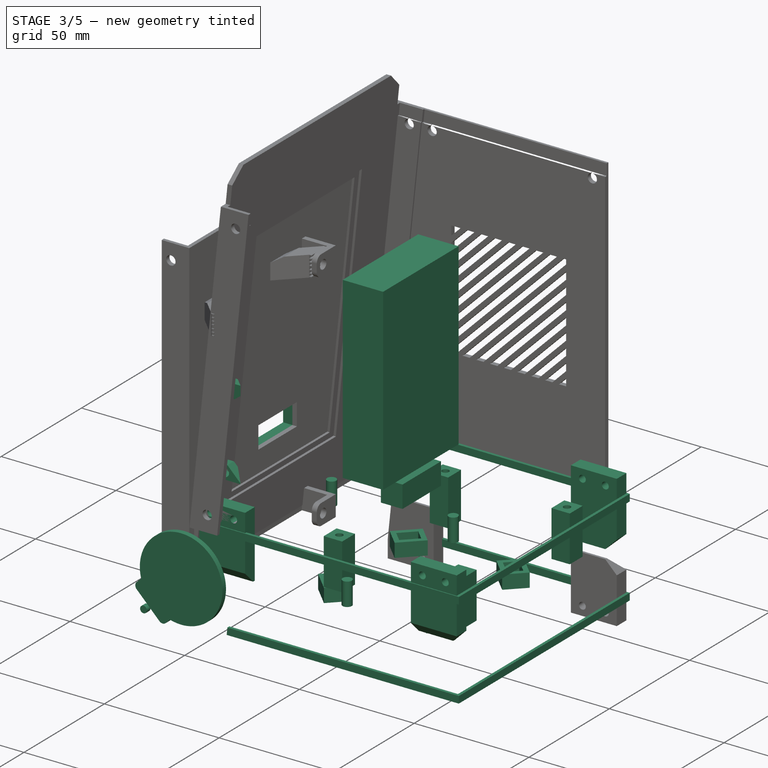
[diagram: stage 3 of 5 — iso view after this stage's code; geometry added in this stage tinted green]
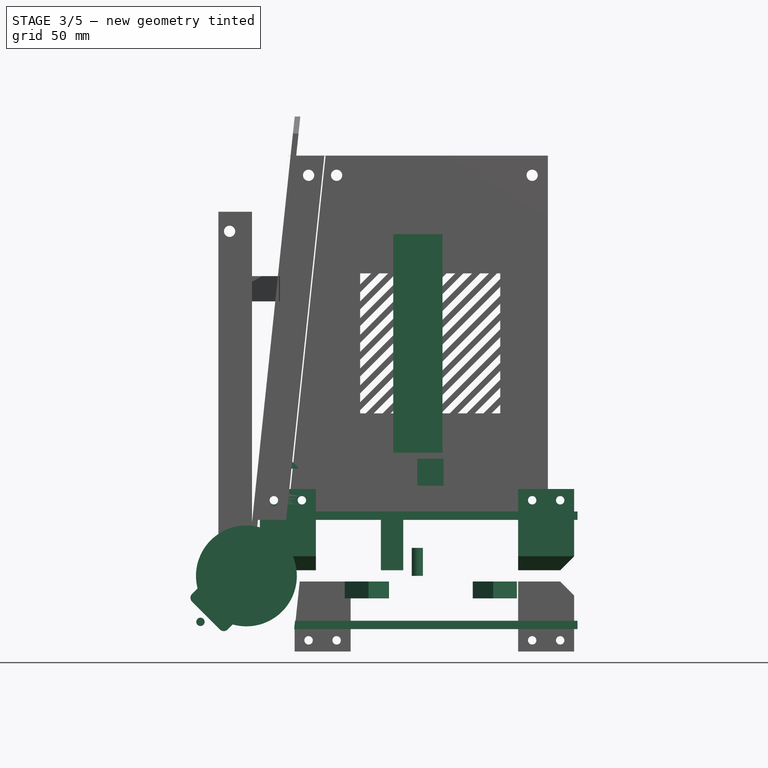
[diagram: stage 3 of 5 — front view after this stage's code; geometry added in this stage tinted green]
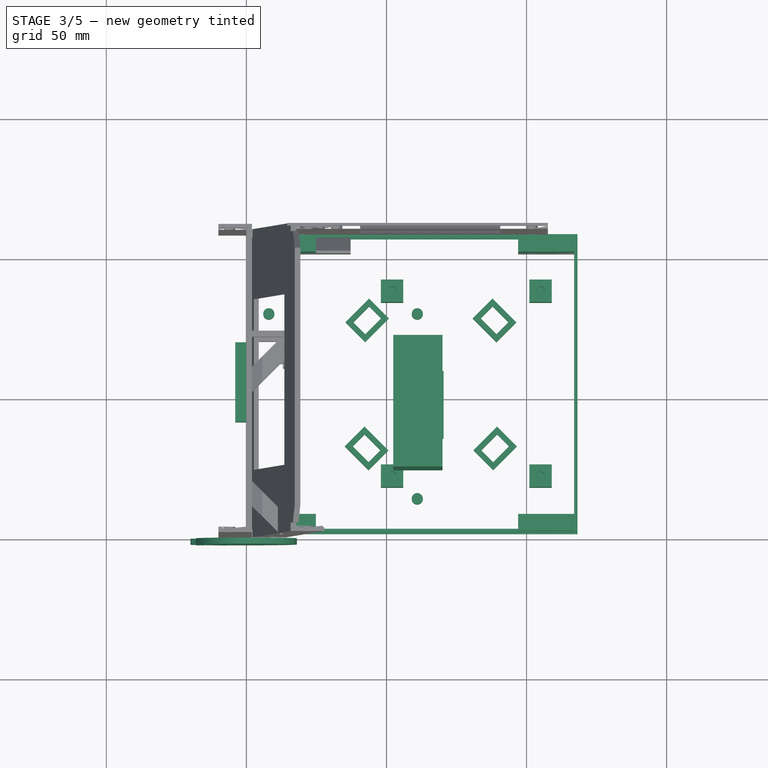
[diagram: stage 3 of 5 — top view after this stage's code; geometry added in this stage tinted green]
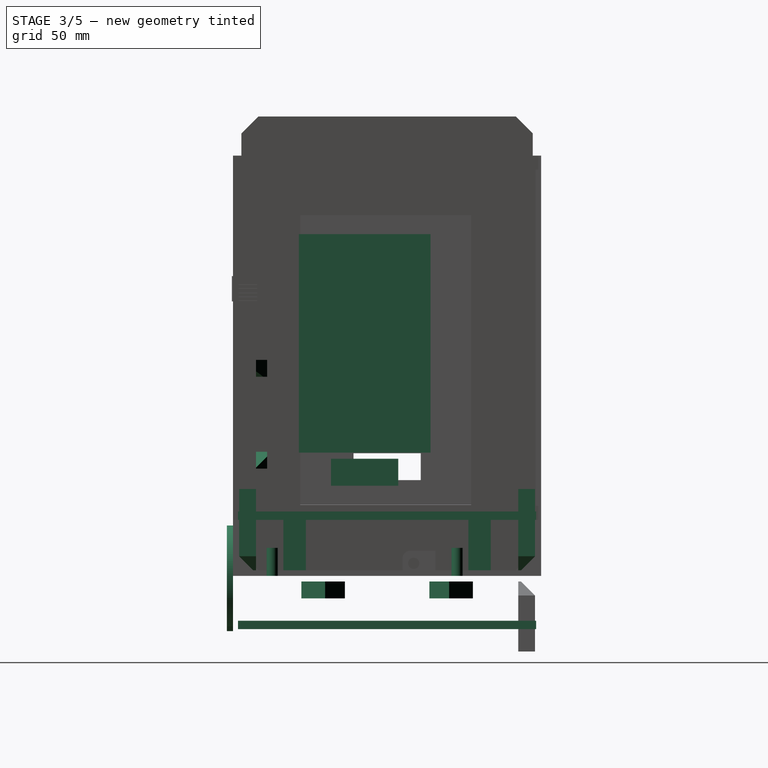
[diagram: stage 3 of 5 — right view after this stage's code; geometry added in this stage tinted green]
FEATURE [Part::Cylinder] Cylinder003  label="LS_Loch"
  Angle = 360
  AttacherType = Attacher::AttachEngine3D
  Height = 2.2
  Placement = pos=(0,0,0) rot=(1,0,0;1.5708rad)
  Radius = 18
FEATURE [Part::Cylinder] Cylinder007  label="LS_Bohrloch4"
  Angle = 360
  AttacherType = Attacher::AttachEngine3D
  Height = 2.2
  Placement = pos=(-16.4,0,-16.4) rot=(1,0,0;1.5708rad)
  Radius = 1.5
FEATURE [Part::Box] Box015  label="LS_Auschnitt002"
  AttacherType = Attacher::AttachEngine3D
  Height = 5
  Length = 18
  Placement = pos=(-20.8,-2.2,-7.8) rot=(0,1,0;0.785398rad)
  Width = 2.2
FEATURE [Part::Fillet] Fillet001
  Base = -> Box015
  Edges = 2 edges r=2: [Edge4,Edge8]
FEATURE [Part::MultiFuse] Fusion003
  Shapes = -> [Cylinder003,Fillet001]
FEATURE [Part::Cylinder] Cylinder017  label="LS_Loch002"
  Angle = 360
  AttacherType = Attacher::AttachEngine3D
  Height = 4
  Placement = pos=(28.1,12.2,57.7) rot=(1,0,0;1.5708rad)
  Radius = 18
FEATURE [Part::Feature] Fusion008_solid  label="LS_Muffe_Solid1"
  shape: bbox 10 x 4 x 6 mm, 12 faces (baked)
FEATURE [Part::Feature] Fusion008_solid001  label="LS_Muffe_Solid2"
  Placement = pos=(0,0,32.8) rot=(0,0,1;0rad)
  shape: bbox 10 x 4 x 6 mm, 12 faces (baked)
FEATURE [Part::Feature] Fusion008_solid002  label="LS_Muffe_Solid3"
  Placement = pos=(-32.8,0,32.8) rot=(0,0,1;0rad)
  shape: bbox 10 x 4 x 6 mm, 12 faces (baked)
FEATURE [Part::Feature] Fusion008_solid003  label="LS_Muffe_Solid4"
  Placement = pos=(-32.8,0,0) rot=(0,0,1;0rad)
  shape: bbox 10 x 4 x 6 mm, 12 faces (baked)
FEATURE [Part::Cut] Cut020  label="LS_Muffe_Solid3_Cut"
  Base = -> Fusion008_solid002
  Tool = -> Cylinder017
FEATURE [Part::Fillet] Fillet005
  Edges = 2 edges r=2: [Edge4,Edge8]
  Placement = pos=(28,10.3,57.8) rot=(0,0,1;0rad)
FEATURE [Part::Cut] Cut021  label="LS_Muffe_Solid4_Cut"
  Base = -> Fusion008_solid003
  Tool = -> Fillet005
FEATURE [Part::Box] Box023  label="Verst_Schale_Ausschnitt"
  AttacherType = Attacher::AttachEngine3D
  Height = 78
  Length = 17.6
  Placement = pos=(52.4,23.5,44) rot=(0,0,1;0rad)
  Width = 47
FEATURE [Part::Box] Box028  label="Rohr_Oeffnung"
  AttacherType = Attacher::AttachEngine3D
  Height = 9.6
  Length = 9.4
  Placement = pos=(61,35,32.2) rot=(0,0,1;0rad)
  Width = 24
FEATURE [Part::Cylinder] Cylinder046  label="Cylinder024"
  Angle = 360
  AttacherType = Attacher::AttachEngine3D
  Height = 8
  Placement = pos=(4,4,12) rot=(0,0,1;0rad)
  Radius = 1.5
FEATURE [Part::Box] Box036  label="Cube028"
  AttacherType = Attacher::AttachEngine3D
  Height = 20
  Length = 8
  Width = 8
FEATURE [Part::Cut] Cut039  label="Fuss1"
  Base = -> Box036
  Placement = pos=(41,18,2) rot=(0,0,1;0rad)
  Tool = -> Cylinder046
FEATURE [Part::Cylinder] Cylinder047  label="FussLoch1"
  Angle = 360
  AttacherType = Attacher::AttachEngine3D
  Height = 10
  Placement = pos=(8,14,0) rot=(0,0,1;0rad)
  Radius = 2
FEATURE [Part::Cylinder] Cylinder048  label="Cylinder026"
  Angle = 360
  AttacherType = Attacher::AttachEngine3D
  Height = 8
  Placement = pos=(4,4,12) rot=(0,0,1;0rad)
  Radius = 1.5
FEATURE [Part::Box] Box037  label="Cube029"
  AttacherType = Attacher::AttachEngine3D
  Height = 20
  Length = 8
  Width = 8
FEATURE [Part::Cut] Cut040  label="Fuss2"
  Base = -> Box037
  Placement = pos=(94,18,2) rot=(0,0,1;0rad)
  Tool = -> Cylinder048
FEATURE [Part::Cylinder] Cylinder049  label="Cylinder027"
  Angle = 360
  AttacherType = Attacher::AttachEngine3D
  Height = 8
  Placement = pos=(4,4,12) rot=(0,0,1;0rad)
  Radius = 1.5
FEATURE [Part::Box] Box038  label="Cube030"
  AttacherType = Attacher::AttachEngine3D
  Height = 20
  Length = 8
  Width = 8
FEATURE [Part::Cut] Cut041  label="Fuss3"
  Base = -> Box038
  Placement = pos=(41,84,2) rot=(0,0,1;0rad)
  Tool = -> Cylinder049
FEATURE [Part::Cylinder] Cylinder050  label="Cylinder028"
  Angle = 360
  AttacherType = Attacher::AttachEngine3D
  Height = 8
  Placement = pos=(4,4,12) rot=(0,0,1;0rad)
  Radius = 1.5
FEATURE [Part::Box] Box039  label="Cube031"
  AttacherType = Attacher::AttachEngine3D
  Height = 20
  Length = 8
  Width = 8
FEATURE [Part::Cut] Cut042  label="Fuss4"
  Base = -> Box039
  Placement = pos=(94,84,2) rot=(0,0,1;0rad)
  Tool = -> Cylinder050
FEATURE [Part::Cylinder] Cylinder051  label="FussLoch2"
  Angle = 360
  AttacherType = Attacher::AttachEngine3D
  Height = 10
  Placement = pos=(8,80,0) rot=(0,0,1;0rad)
  Radius = 2
FEATURE [Part::Cylinder] Cylinder052  label="FussLoch3"
  Angle = 360
  AttacherType = Attacher::AttachEngine3D
  Height = 10
  Placement = pos=(61,80,0) rot=(0,0,1;0rad)
  Radius = 2
FEATURE [Part::Cylinder] Cylinder053  label="FussLoch4"
  Angle = 360
  AttacherType = Attacher::AttachEngine3D
  Height = 10
  Placement = pos=(61,14,0) rot=(0,0,1;0rad)
  Radius = 2
FEATURE [Part::MultiFuse] Fusion020  label="FussLoecher"
  Shapes = -> [Cylinder053,Cylinder051,Cylinder052,Cylinder047]
FEATURE [App::Part] Part002  label="Audio"
  Group = -> [Cut,Sketch,Box,Box012,Pad003,Cut010,Box013,Cut011,Box014,Cut012,Fillet001,Cylinder006,Cylinder005,Cylinder004,Fusion003,Cylinder003,Cylinder007,Box015,Fusion004,Cylinder017,Cut018,Cylinder014,Box020,Fillet004,Wedge001,Fusion008,Cut020,Part__Mirroring,Fusion008_solid002,Cut019,Cut021,Cutout,Fillet005,Fusion009,Fusion008_solid003,Fusion008_solid,Fusion008_solid001,Cutout001,Box023,Cutout002,Box026,+22 more]
  Origin = -> Origin010
  Placement = pos=(44,8,22) rot=(0,0,1;0rad)
FEATURE [Part::MultiFuse] Fusion021  label="Fuesse"
  Placement = pos=(7,0,0) rot=(0,0,1;0rad)
  Shapes = -> [Cut039,Cut042,Cut041,Cut040]
FEATURE [Part::Box] Box040  label="Cube032"
  AttacherType = Attacher::AttachEngine3D
  Height = 6
  Length = 10
  Width = 12
FEATURE [Part::Box] Box041  label="Cube033"
  AttacherType = Attacher::AttachEngine3D
  Height = 6
  Length = 6
  Placement = pos=(2,2,0) rot=(0,0,1;0rad)
  Width = 8
FEATURE [Part::Cut] Cut044  label="Mic_Cube_RV"
  Base = -> Box040
  Placement = pos=(46.28,45.08,-8) rot=(0,0,1;0.785398rad)
  Tool = -> Box041
FEATURE [Part::Box] Box042  label="Cube034"
  AttacherType = Attacher::AttachEngine3D
  Height = 6
  Length = 10
  Width = 12
FEATURE [Part::Box] Box043  label="Cube035"
  AttacherType = Attacher::AttachEngine3D
  Height = 6
  Length = 6
  Placement = pos=(2,2,0) rot=(0,0,1;0rad)
  Width = 8
FEATURE [Part::Cut] Cut045  label="Mic_Cube001"
  Base = -> Box042
  Placement = pos=(0.6,-0.6,-8) rot=(0,0,1;0.785398rad)
  Tool = -> Box043
FEATURE [Part::Box] Box044  label="Cube036"
  AttacherType = Attacher::AttachEngine3D
  Height = 6
  Length = 12
  Width = 10
FEATURE [Part::Box] Box045  label="Cube037"
  AttacherType = Attacher::AttachEngine3D
  Height = 6
  Length = 8
  Placement = pos=(2,2,0) rot=(0,0,1;0rad)
  Width = 6
FEATURE [Part::Cut] Cut046  label="Mic_Cube002"
  Base = -> Box044
  Placement = pos=(45.08,-0.6,-8) rot=(0,0,1;0.785398rad)
  Tool = -> Box045
FEATURE [Part::Box] Box046  label="Cube038"
  AttacherType = Attacher::AttachEngine3D
  Height = 6
  Length = 12
  Width = 10
FEATURE [Part::Box] Box047  label="Cube039"
  AttacherType = Attacher::AttachEngine3D
  Height = 6
  Length = 8
  Placement = pos=(2,2,0) rot=(0,0,1;0rad)
  Width = 6
FEATURE [Part::Cut] Cut047  label="Mic_Cube003"
  Base = -> Box046
  Placement = pos=(-0.6,45.08,-8) rot=(0,0,1;0.785398rad)
  Tool = -> Box047
FEATURE [Part::MultiFuse] Fusion022  label="MicCubes"
  Placement = pos=(43,25,0) rot=(0,0,1;0rad)
  Shapes = -> [Cut047,Cut044,Cut045,Cut046]
FEATURE [Part::Box] Box048  label="Cube040"
  AttacherType = Attacher::AttachEngine3D
  Height = 3
  Length = 118.2
  Width = 106.4
FEATURE [Part::Box] Box049  label="Cube041"
  AttacherType = Attacher::AttachEngine3D
  Height = 3
  Length = 117
  Placement = pos=(0,1.2,0) rot=(0,0,1;0rad)
  Width = 104
FEATURE [Part::Cut] Cut048  label="Rahmen"
  Base = -> Box048
  Placement = pos=(0,1.8,20) rot=(0,0,1;0rad)
  Tool = -> Box049
FEATURE [Sketcher::SketchObject] Sketch010
  MapMode = 5
  Placement = pos=(0,0,0) rot=(1,0,0;1.5708rad)
  Support = -> [XZ_Plane020]
  sketch-geometry (4):
    g0: LineSegment StartX=0 StartY=0 StartZ=0 EndX=2.01 EndY=0 EndZ=0
    g1: LineSegment StartX=2.01 StartY=0 StartZ=0 EndX=6.25028 EndY=40.3435 EndZ=0
    g2: LineSegment StartX=6.25028 StartY=40.3435 StartZ=0 EndX=0 EndY=40.3435 EndZ=0
    g3: LineSegment StartX=0 StartY=40.3435 StartZ=0 EndX=0 EndY=0 EndZ=0
  constraints (10):
    c: Coincident(g0,g1)
    c: Coincident(g1,g2)
    c: Coincident(g2,g3)
    c: Coincident(g3,g0)
    c: Coincident(g0,g-1)
    c: Horizontal(g0)
    c: Distance(g0) = 2.01
    c: Angle(g1,g-2) = 0.10472
    c: Vertical(g3)
    c: Horizontal(g2)
FEATURE [PartDesign::Pad] Pad005
  Length = 110
  Length2 = 100
  Placement = pos=(0,0,0) rot=(1,0,0;1.5708rad)
  Profile = -> Sketch010
  Reversed = true
  Type = 0
FEATURE [PartDesign::Body] Body003  label="Pad_Rahmen"
  Group = -> [Sketch010,Pad005]
  Origin = -> Origin020
  Tip = -> Pad005
FEATURE [Part::Cut] Cut049  label="Rahmen_Cut"
  Base = -> Cut048
  Tool = -> Body003
FEATURE [Part::Box] Box050  label="Cube042"
  AttacherType = Attacher::AttachEngine3D
  Height = 3
  Length = 118.2
  Width = 106.4
FEATURE [Part::Box] Box051  label="Cube043"
  AttacherType = Attacher::AttachEngine3D
  Height = 3
  Length = 117
  Placement = pos=(0,1.2,0) rot=(0,0,1;0rad)
  Width = 104
FEATURE [Part::Cut] Cut050  label="Rahmen001"
  Base = -> Box050
  Placement = pos=(0,1.8,-19) rot=(0,0,1;0rad)
  Tool = -> Box051
FEATURE [Sketcher::SketchObject] CopySketch011  label="Sketch011"
  Placement = pos=(0,0,-162) rot=(1,0,0;1.5708rad)
  sketch-geometry (4):
    g0: LineSegment StartX=0 StartY=0 StartZ=0 EndX=2.01 EndY=0 EndZ=0
    g1: LineSegment StartX=2.01 StartY=0 StartZ=0 EndX=19.8777 EndY=170 EndZ=0
    g2: LineSegment StartX=19.8777 StartY=170 StartZ=0 EndX=0 EndY=170 EndZ=0
    g3: LineSegment StartX=0 StartY=170 StartZ=0 EndX=0 EndY=0 EndZ=0
  constraints (11):
    c: Coincident(g0,g1)
    c: Coincident(g1,g2)
    c: Coincident(g2,g3)
    c: Coincident(g3,g0)
    c: Coincident(g0,g-1)
    c: Horizontal(g0)
    c: Distance(g0) = 2.01
    c: Angle(g1,g-2) = 0.10472
    c: Vertical(g3)
    c: Horizontal(g2)
    c: Distance(g3) = 170
FEATURE [PartDesign::Pad] Pad006
  Length = 110
  Length2 = 100
  Placement = pos=(0,0,-162) rot=(1,0,0;1.5708rad)
  Profile = -> CopySketch011
  Reversed = true
  Type = 0
FEATURE [PartDesign::Body] Body004
  Group = -> [Pad006]
  Origin = -> Origin021
  Tip = -> Pad006
FEATURE [Part::Cut] Cut051  label="Deckel_Rahmen_Cut"
  Base = -> Cut050
  Tool = -> Body004
FEATURE [Part::Box] Box057  label="Cube049"
  AttacherType = Attacher::AttachEngine3D
  Height = 14
  Length = 4
  Width = 28.4
FEATURE [Part::Box] Box058  label="Cube050"
  AttacherType = Attacher::AttachEngine3D
  Height = 9.6
  Length = 4
  Placement = pos=(0,2.2,2.2) rot=(0,0,1;0rad)
  Width = 24
FEATURE [Part::Cut] Cut053  label="Ruecken_Rohr"
  Base = -> Box057
  Placement = pos=(-4,40.8,32) rot=(0,0,1;0rad)
  Tool = -> Box058
FEATURE [Part::Box] Box061  label="Cube052"
  AttacherType = Attacher::AttachEngine3D
  Height = 29
  Length = 20
  Placement = pos=(0,3,0) rot=(0,0,1;0rad)
  Width = 6
FEATURE [Part::Cylinder] Cylinder056  label="Cylinder031"
  Angle = 360
  AttacherType = Attacher::AttachEngine3D
  Height = 10
  Placement = pos=(15,10,25) rot=(1,0,0;1.5708rad)
  Radius = 1.5
FEATURE [Part::Cylinder] Cylinder057  label="Cylinder032"
  Angle = 360
  AttacherType = Attacher::AttachEngine3D
  Height = 10
  Placement = pos=(5,10,25) rot=(1,0,0;1.5708rad)
  Radius = 1.5
FEATURE [Part::MultiFuse] Fusion026
  Shapes = -> [Cylinder056,Cylinder057]
FEATURE [Part::Cut] Cut056
  Base = -> Box061
  Tool = -> Fusion026
FEATURE [Part::Chamfer] Chamfer005  label="Befest002"
  Base = -> Cut056
  Edges = 2 edges r=5: [Edge5,Edge16]
  Placement = pos=(97,-0.8,2) rot=(0,0,1;0rad)
FEATURE [Part::Chamfer] Chamfer006  label="Befest003"
  Base = -> Cut057
  Edges = 1 edges r=5: [Edge5]
  Placement = pos=(4.6,0,2) rot=(0,0,1;0rad)
FEATURE [Part::Mirroring] mirror002  label="Befest002_M"
  Base = (0,0,0)
  Normal = (0,1,0)
  Placement = pos=(0,110,0) rot=(0,0,1;0rad)
  Source = -> Chamfer005
FEATURE [PartDesign::Body] Body005
  Group = -> [Sketch011,Pad007]
  Origin = -> Origin023
  Tip = -> Pad007
FEATURE [Part::Cut] Cut058  label="Befest003_Cut"
  Base = -> Chamfer006
  Placement = pos=(0.2,-0.8,0) rot=(0,0,1;0rad)
  Tool = -> Body005
FEATURE [Part::Mirroring] mirror003  label="Befest004_M"
  Base = (0,0,0)
  Normal = (0,1,0)
  Placement = pos=(0,110,0) rot=(0,0,1;0rad)
  Source = -> Cut058
FEATURE [Part::MultiFuse] Fusion028  label="Befestigungen"
  Shapes = -> [Cut058,Chamfer005,mirror003,mirror002]
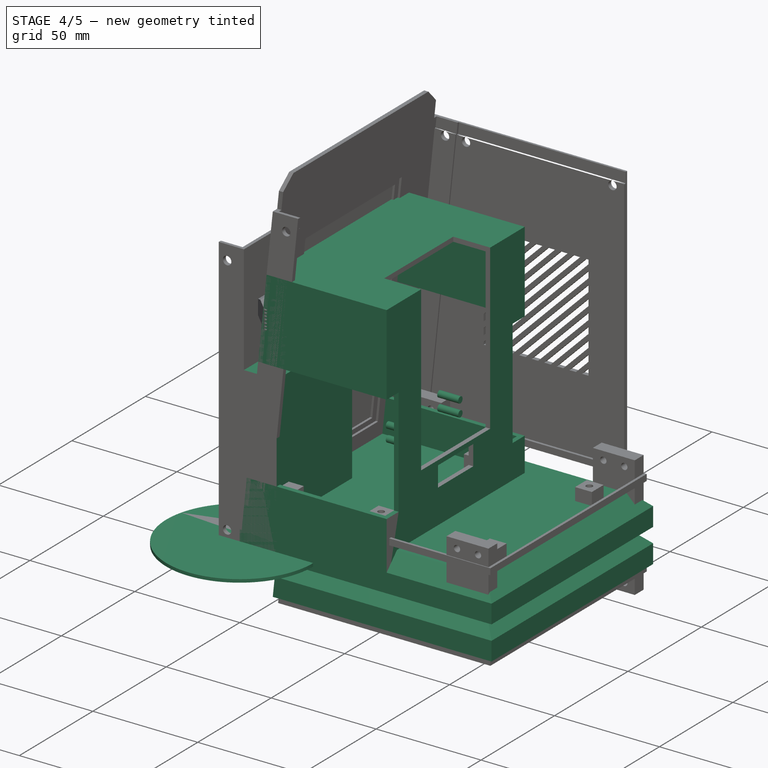
[diagram: stage 4 of 5 — iso view after this stage's code; geometry added in this stage tinted green]
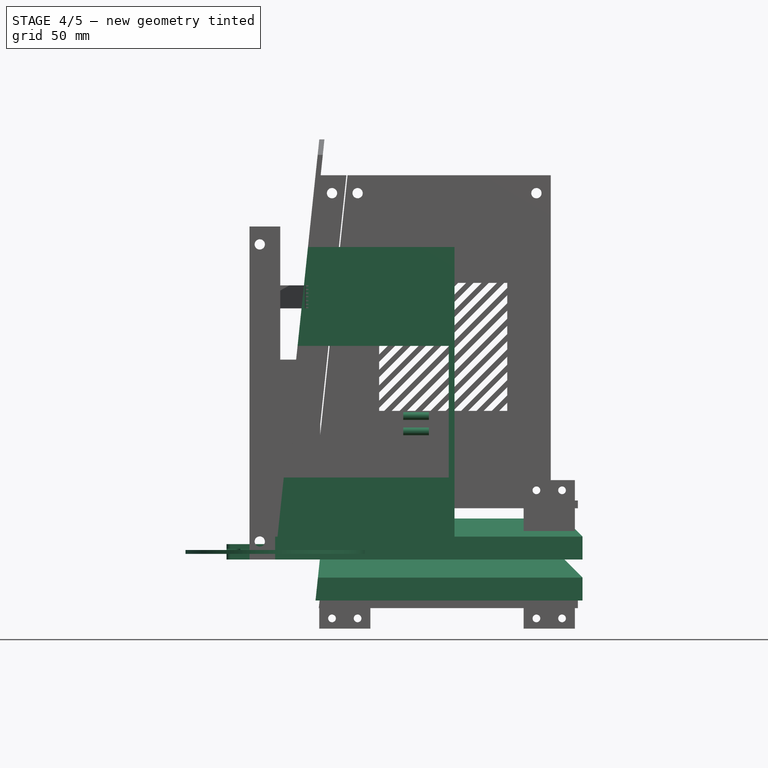
[diagram: stage 4 of 5 — front view after this stage's code; geometry added in this stage tinted green]
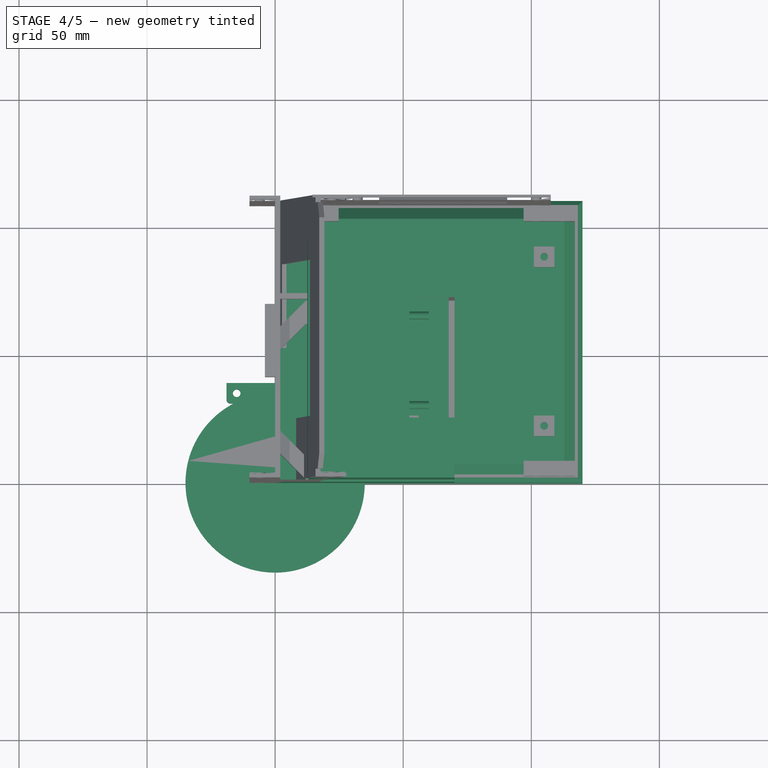
[diagram: stage 4 of 5 — top view after this stage's code; geometry added in this stage tinted green]
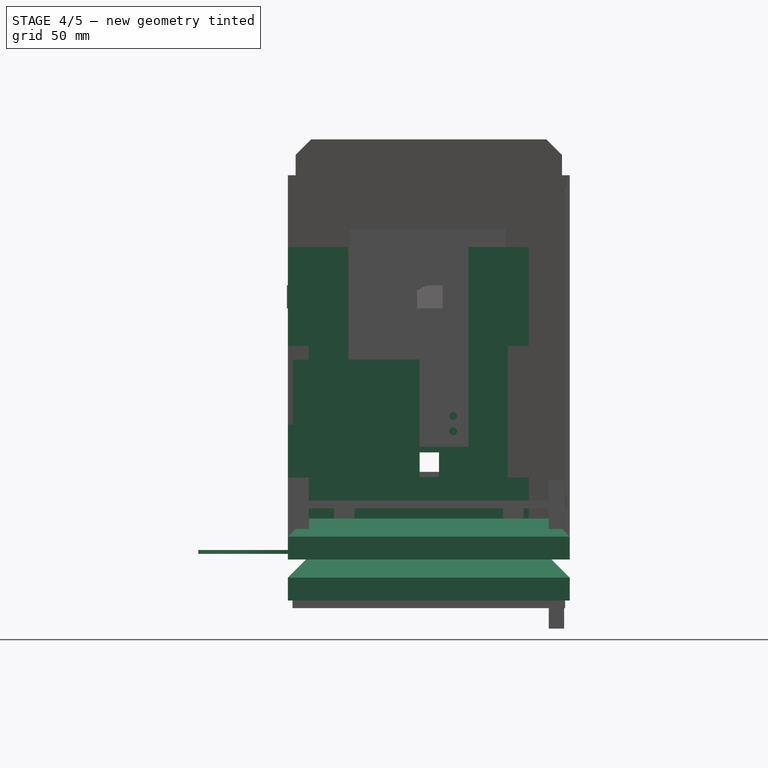
[diagram: stage 4 of 5 — right view after this stage's code; geometry added in this stage tinted green]
FEATURE [Sketcher::SketchObject] Sketch
  MapMode = 5
  Placement = pos=(0,0,0) rot=(1,0,0;1.5708rad)
  sketch-geometry (3):
    g0: LineSegment StartX=0 StartY=0 StartZ=0 EndX=15.0295 EndY=142.996 EndZ=0
    g1: LineSegment StartX=15.0295 StartY=142.996 StartZ=0 EndX=0 EndY=142.996 EndZ=0
    g2: LineSegment StartX=0 StartY=142.996 StartZ=0 EndX=0 EndY=0 EndZ=0
  constraints (7):
    c: Coincident(g0,g1)
    c: Coincident(g1,g2)
    c: Coincident(g2,g0)
    c: Coincident(g0,g-1)
    c: Vertical(g2)
    c: Angle(g0,g2) = 0.10472
    c: Horizontal(g1)
FEATURE [PartDesign::Pad] Pad003
  Length = 94
  Length2 = 100
  Placement = pos=(0,0,0) rot=(1,0,0;1.5708rad)
  Profile = -> Sketch
  Reversed = true
  Type = 0
FEATURE [Part::Box] Box  label="Cube_out"
  AttacherType = Attacher::AttachEngine3D
  Height = 122
  Length = 70
  Width = 94
FEATURE [Part::Box] Box012  label="Cube_Innen"
  AttacherType = Attacher::AttachEngine3D
  Height = 117.6
  Length = 67.8
  Placement = pos=(0,2.2,2.2) rot=(0,0,1;0rad)
  Width = 89.6
FEATURE [Part::Cut] Cut
  Base = -> Box
  Tool = -> Box012
FEATURE [Part::Box] Box013  label="Cube"
  AttacherType = Attacher::AttachEngine3D
  Height = 51.4
  Length = 70
  Width = 8.2
FEATURE [Part::Box] Box014  label="Cube012"
  AttacherType = Attacher::AttachEngine3D
  Height = 47
  Length = 70
  Placement = pos=(0,0,2.2) rot=(0,0,1;0rad)
  Width = 6
FEATURE [Part::Cut] Cut010
  Base = -> Box013
  Placement = pos=(0,0,32) rot=(0,0,1;0rad)
  Tool = -> Box014
FEATURE [Part::Cut] Cut011  label="LS_Aussp"
  Base = -> Cut010
  Tool = -> Pad003
FEATURE [Part::Cylinder] Cylinder004  label="LS_Bohrloch1"
  Angle = 360
  AttacherType = Attacher::AttachEngine3D
  Height = 2.2
  Placement = pos=(16.4,0,16.4) rot=(1,0,0;1.5708rad)
  Radius = 1.5
FEATURE [Part::Cylinder] Cylinder005  label="LS_Bohrloch2"
  Angle = 360
  AttacherType = Attacher::AttachEngine3D
  Height = 2.2
  Placement = pos=(16.4,0,-16.4) rot=(1,0,0;1.5708rad)
  Radius = 1.5
FEATURE [Part::Cylinder] Cylinder006  label="LS_Bohrloch3"
  Angle = 360
  AttacherType = Attacher::AttachEngine3D
  Height = 2.2
  Placement = pos=(-16.4,0,16.4) rot=(1,0,0;1.5708rad)
  Radius = 1.5
FEATURE [Part::Cut] Cut012  label="AudioKammer"
  Base = -> Cut
  Tool = -> Pad003
FEATURE [Part::MultiFuse] Fusion004  label="LS_Bohrung"
  Placement = pos=(28,8.2,57.7) rot=(0,0,1;0rad)
  Shapes = -> [Cylinder006,Cylinder005,Cylinder004,Cylinder007,Fusion003]
FEATURE [Part::Cut] Cut019  label="LS_Ausp_Bohr"
  Base = -> Cut011
  Tool = -> Fusion004
FEATURE [Part::MultiFuse] Fusion009  label="LS_Ausp_Bohr_Muff_R"
  Shapes = -> [Cut019,Fusion008_solid,Fusion008_solid001,Cut020,Cut021]
FEATURE [Part::Mirroring] Part__Mirroring  label="LS_Ausp_Bohr_Muff_L"
  Base = (0,0,0)
  Normal = (1,0,0)
  Placement = pos=(0,94,0) rot=(0,0,1;3.14159rad)
  Source = -> Fusion009
FEATURE [Part::FeaturePython] Cutout  # WARN: FeaturePython — macro-defined, semantics opaque (R4)
  Base = -> Cut012
  Tolerance = 0
  Tool = -> Fusion009
FEATURE [Part::FeaturePython] Cutout001  label="AudioKamme_ohne_LS_Ausp"  # WARN: FeaturePython — macro-defined, semantics opaque (R4)
  Base = -> Cutout
  Tolerance = 0
  Tool = -> Part__Mirroring
FEATURE [Part::Box] Box021  label="Verst_Schale_Aussen"
  AttacherType = Attacher::AttachEngine3D
  Height = 78
  Length = 17.6
  Width = 51.4
FEATURE [Part::Box] Box022  label="Verst_Schale_Innen"
  AttacherType = Attacher::AttachEngine3D
  Height = 75.8
  Length = 15.4
  Placement = pos=(2.2,2.2,2.2) rot=(0,0,1;0rad)
  Width = 47
FEATURE [Part::FeaturePython] Cutout002  label="AudioKammer_ohne_LS_Ausp_VS_Ausp"  # WARN: FeaturePython — macro-defined, semantics opaque (R4)
  Base = -> Cutout001
  Tolerance = 0
  Tool = -> Box023
FEATURE [Part::FeaturePython] Cutout003  label="AudioKammer_ohne_LS_Ausp_VS_Ausp_Rohr_Ausp"  # WARN: FeaturePython — macro-defined, semantics opaque (R4)
  Base = -> Cutout002
  Tolerance = 0
  Tool = -> Box028
FEATURE [Part::Cylinder] Cylinder024  label="VS_Schale_Loch001"
  Angle = 360
  AttacherType = Attacher::AttachEngine3D
  Height = 10
  Placement = pos=(50,29.5,56) rot=(0,1,0;1.5708rad)
  Radius = 1.5
FEATURE [Part::Cylinder] Cylinder025  label="VS_Schale_Loch002"
  Angle = 360
  AttacherType = Attacher::AttachEngine3D
  Height = 10
  Placement = pos=(50,29.5,50) rot=(0,1,0;1.5708rad)
  Radius = 1.5
FEATURE [Part::Cylinder] Cylinder026  label="VS_Schale_Loch003"
  Angle = 360
  AttacherType = Attacher::AttachEngine3D
  Height = 10
  Placement = pos=(50,64.5,56) rot=(0,1,0;1.5708rad)
  Radius = 1.5
FEATURE [Part::Cylinder] Cylinder027  label="VS_Schale_Loch004"
  Angle = 360
  AttacherType = Attacher::AttachEngine3D
  Height = 10
  Placement = pos=(50,64.5,50) rot=(0,1,0;1.5708rad)
  Radius = 1.5
FEATURE [Part::MultiFuse] Fusion015  label="VS_Schale_Loecher"
  Shapes = -> [Cylinder027,Cylinder026,Cylinder025,Cylinder024]
FEATURE [App::Part] Part006  label="Verst"
  Group = -> [Box021,Box022,Cut022,Cut029_solid,Cut029_solid001,Cut029_solid002,Cut029_solid003,Fusion014,Cylinder024,Cylinder025,Cylinder026,Cylinder027,Fusion015,Cut029]
  Origin = -> Origin015
FEATURE [Part::Cylinder] Cylinder028  label="Cylinder007"
  Angle = 360
  AttacherType = Attacher::AttachEngine3D
  Height = 2
  Placement = pos=(0,0,2.2) rot=(0,0,1;0rad)
  Radius = 38
FEATURE [Part::Box] Box033  label="Cube025"
  AttacherType = Attacher::AttachEngine3D
  Height = 6
  Length = 38
  Placement = pos=(-19,-39,0) rot=(0,0,1;0rad)
  Width = 8
FEATURE [Part::Cylinder] Cylinder031  label="Cylinder010"
  Angle = 360
  AttacherType = Attacher::AttachEngine3D
  Height = 10
  Placement = pos=(-15,-35,0) rot=(0,0,1;0rad)
  Radius = 1.5
FEATURE [Part::Cylinder] Cylinder032  label="Cylinder011"
  Angle = 360
  AttacherType = Attacher::AttachEngine3D
  Height = 10
  Placement = pos=(15,-35,0) rot=(0,0,1;0rad)
  Radius = 1.5
FEATURE [Part::MultiFuse] Fusion017
  Shapes = -> [Cylinder032,Cylinder031]
FEATURE [Part::Fillet] Fillet006
  Base = -> Box033
  Edges = 2 edges r=1.6: [Edge3,Edge7]
FEATURE [Part::Cut] Cut030
  Base = -> Fillet006
  Tool = -> Fusion017
FEATURE [Part::Cut] Cut031  label="Mic_H_1"
  Base = -> Cut030
  Tool = -> Cylinder028
FEATURE [Part::Mirroring] Part__Mirroring003  label="Mic_H_2"
  Base = (0,0,0)
  Normal = (0,1,0)
  Source = -> Cut031
FEATURE [Part::Cylinder] Cylinder033  label="Mic"
  Angle = 360
  AttacherType = Attacher::AttachEngine3D
  Height = 1.5
  Placement = pos=(0,0,2.2) rot=(0,0,1;0rad)
  Radius = 35
FEATURE [App::Part] Part007  label="Mic-Halter"
  Group = -> [Cylinder028,Cylinder031,Fusion017,Box033,Cylinder032,Fillet006,Cut030,Cut031,Part__Mirroring003,Cylinder033]
  Origin = -> Origin016
  Placement = pos=(66,55,154) rot=(0,0,1;0rad)
FEATURE [Part::Box] Box034  label="Cube026"
  AttacherType = Attacher::AttachEngine3D
  Height = 16
  Length = 120
  Width = 110
FEATURE [Part::Chamfer] Chamfer003
  Base = -> Box034
  Edges = 3 edges r=7.07: [Edge8,Edge9,Edge11]
FEATURE [Part::Box] Box035  label="Cube027"
  AttacherType = Attacher::AttachEngine3D
  Height = 14
  Length = 117
  Placement = pos=(0,3,2) rot=(0,0,1;0rad)
  Width = 104
FEATURE [Part::Chamfer] Chamfer004
  Base = -> Box035
  Edges = 3 edges r=6.07: [Edge8,Edge9,Edge11]
FEATURE [Part::Cut] Cut032  label="Deckel_Cut_Basis"
  Base = -> Chamfer003
  Placement = pos=(0,0,0) rot=(1,0,0;3.14159rad)
  Tool = -> Chamfer004
FEATURE [Part::Mirroring] mirror  label="Mirror of Deckel_Cut_Konstruktion"
  Base = (0,0,0)
  Normal = (0,1,0)
  Placement = pos=(0,0,16) rot=(0,0,1;0rad)
  Source = -> Cut032
FEATURE [Part::Feature] mirror001  label="Deckel001"
  shape: bbox 120 x 110 x 16 mm, 16 faces (baked)
FEATURE [Sketcher::SketchObject] Sketch005
  Placement = pos=(0,0,-166) rot=(1,0,0;1.5708rad)
  sketch-geometry (3):
    g0: LineSegment StartX=0 StartY=0 StartZ=0 EndX=19.7877 EndY=188.268 EndZ=0
    g1: LineSegment StartX=19.7877 StartY=188.268 StartZ=0 EndX=0 EndY=188.268 EndZ=0
    g2: LineSegment StartX=0 StartY=188.268 StartZ=0 EndX=0 EndY=0 EndZ=0
  constraints (7):
    c: Coincident(g0,g1)
    c: Coincident(g1,g2)
    c: Coincident(g2,g0)
    c: Coincident(g0,g-1)
    c: Angle(g0,g2) = 0.10472
    c: Vertical(g2)
    c: Horizontal(g1)
FEATURE [PartDesign::Pad] Pad004
  Length = 110
  Length2 = 100
  Placement = pos=(0,0,-166) rot=(1,0,0;1.5708rad)
  Profile = -> Sketch005
  Reversed = true
  Type = 0
FEATURE [Part::Cylinder] Cylinder034  label="Cylinder012"
  Angle = 360
  AttacherType = Attacher::AttachEngine3D
  Height = 4
  Radius = 1.5
FEATURE [Part::Cylinder] Cylinder035  label="Cylinder013"
  Angle = 360
  AttacherType = Attacher::AttachEngine3D
  Height = 4
  Radius = 4
FEATURE [Part::Cut] Cut034  label="Deckel_Muffe001"
  Base = -> Cylinder035
  Placement = pos=(15,-35,0) rot=(0,0,1;0rad)
  Tool = -> Cylinder034
FEATURE [Part::Cylinder] Cylinder036  label="Cylinder014"
  Angle = 360
  AttacherType = Attacher::AttachEngine3D
  Height = 4
  Radius = 4
FEATURE [Part::Cylinder] Cylinder037  label="Cylinder015"
  Angle = 360
  AttacherType = Attacher::AttachEngine3D
  Height = 4
  Radius = 1.5
FEATURE [Part::Cut] Cut035  label="Deckel_Muffe002"
  Base = -> Cylinder036
  Placement = pos=(-15,-35,0) rot=(0,0,1;0rad)
  Tool = -> Cylinder037
FEATURE [Part::Cylinder] Cylinder038  label="Cylinder016"
  Angle = 360
  AttacherType = Attacher::AttachEngine3D
  Height = 4
  Radius = 4
FEATURE [Part::Cylinder] Cylinder039  label="Cylinder017"
  Angle = 360
  AttacherType = Attacher::AttachEngine3D
  Height = 4
  Radius = 1.5
FEATURE [Part::Cut] Cut036  label="Deckel_Muffe003"
  Base = -> Cylinder038
  Placement = pos=(15,35,0) rot=(0,0,1;0rad)
  Tool = -> Cylinder039
FEATURE [Part::Cylinder] Cylinder040  label="Cylinder018"
  Angle = 360
  AttacherType = Attacher::AttachEngine3D
  Height = 4
  Radius = 4
FEATURE [Part::Cylinder] Cylinder041  label="Cylinder019"
  Angle = 360
  AttacherType = Attacher::AttachEngine3D
  Height = 4
  Radius = 1.5
FEATURE [Part::Cut] Cut037  label="Deckel_Muffe004"
  Base = -> Cylinder040
  Placement = pos=(-15,35,0) rot=(0,0,1;0rad)
  Tool = -> Cylinder041
FEATURE [Part::MultiFuse] Fusion018  label="Deckel_Muffen"
  Placement = pos=(66,55,-6) rot=(0,0,1;0rad)
  Shapes = -> [Cut034,Cut035,Cut036,Cut037]
FEATURE [Part::Cylinder] Cylinder042  label="Cylinder020"
  Angle = 360
  AttacherType = Attacher::AttachEngine3D
  Height = 4
  Placement = pos=(45.68,0,0) rot=(0,0,1;0rad)
  Radius = 1
FEATURE [Part::Cylinder] Cylinder043  label="Cylinder021"
  Angle = 360
  AttacherType = Attacher::AttachEngine3D
  Height = 4
  Radius = 1
FEATURE [Part::Cylinder] Cylinder044  label="Cylinder022"
  Angle = 360
  AttacherType = Attacher::AttachEngine3D
  Height = 4
  Placement = pos=(0,45.68,0) rot=(0,0,1;0rad)
  Radius = 1
FEATURE [Part::Cylinder] Cylinder045  label="Cylinder023"
  Angle = 360
  AttacherType = Attacher::AttachEngine3D
  Height = 4
  Placement = pos=(45.68,45.68,0) rot=(0,0,1;0rad)
  Radius = 1
FEATURE [Part::MultiFuse] Fusion019  label="Deckel_Loecher"
  Placement = pos=(43,32,-3) rot=(0,0,1;0rad)
  Shapes = -> [Cylinder045,Cylinder044,Cylinder042,Cylinder043]
FEATURE [Part::Cut] Cut043  label="AudioKammer_LS_Ausp_VS_Ausp_Rohr_Ausp_FL"
  Base = -> Cutout003
  Tool = -> Fusion020
FEATURE [Sketcher::SketchObject] Sketch006
  MapMode = 5
  Placement = pos=(0,0,0) rot=(1,0,0;1.5708rad)
  Support = -> [XZ_Plane019]
FEATURE [Sketcher::SketchObject] Sketch007
  MapMode = 5
  Placement = pos=(0,0,0) rot=(1,0,0;1.5708rad)
  Support = -> [XZ_Plane019]
FEATURE [Sketcher::SketchObject] Sketch008
  MapMode = 5
  Placement = pos=(0,0,0) rot=(1,0,0;1.5708rad)
  Support = -> [XZ_Plane007]
  sketch-geometry (2):
    g0: LineSegment StartX=-0.058398 StartY=-162.167 StartZ=0 EndX=0.047254 EndY=-162.167 EndZ=0
    g1: LineSegment StartX=0.047254 StartY=-162.167 StartZ=0 EndX=3.74509 EndY=-130.999 EndZ=0
  constraints (1):
    c: Coincident(g0,g1)
FEATURE [Sketcher::SketchObject] Sketch009
  MapMode = 5
  Placement = pos=(0,0,0) rot=(1,0,0;1.5708rad)
  Support = -> [XZ_Plane]
  sketch-geometry (4):
    g0: LineSegment StartX=-13.5836 StartY=-162.272 StartZ=0 EndX=-11.1536 EndY=-130.048 EndZ=0
    g1: LineSegment StartX=-11.1536 StartY=-130.048 StartZ=0 EndX=-5.65962 EndY=-128.147 EndZ=0
    g2: LineSegment StartX=-5.65962 StartY=-128.147 StartZ=0 EndX=-20.3453 EndY=-149.805 EndZ=0
    g3: LineSegment StartX=-20.3453 StartY=-149.805 StartZ=0 EndX=-20.2397 EndY=-149.066 EndZ=0
  constraints (3):
    c: Coincident(g0,g1)
    c: Coincident(g1,g2)
    c: Coincident(g2,g3)
FEATURE [PartDesign::Body] Body002
  Group = -> [Pad004,Sketch006,Sketch007,Sketch008,Sketch009]
  Origin = -> Origin019
  Tip = -> Pad004
FEATURE [Part::Cut] Cut033  label="Deckel_Cut"
  Base = -> mirror001
  Tool = -> Body002
FEATURE [Part::Cut] Cut038  label="Deckel_Cut_Loecher"
  Base = -> Cut033
  Tool = -> Fusion019
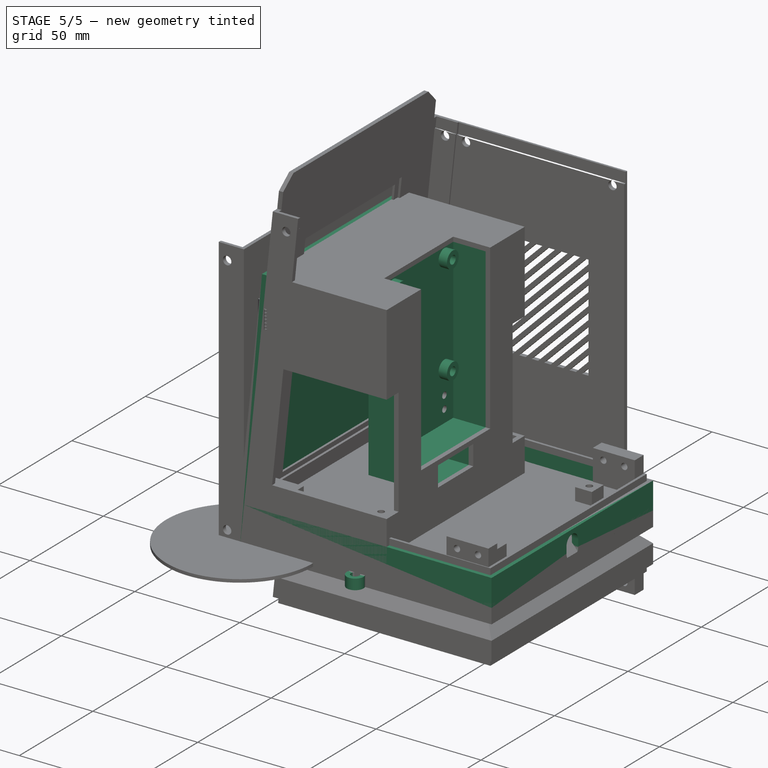
[diagram: stage 5 of 5 — iso view after this stage's code; geometry added in this stage tinted green]
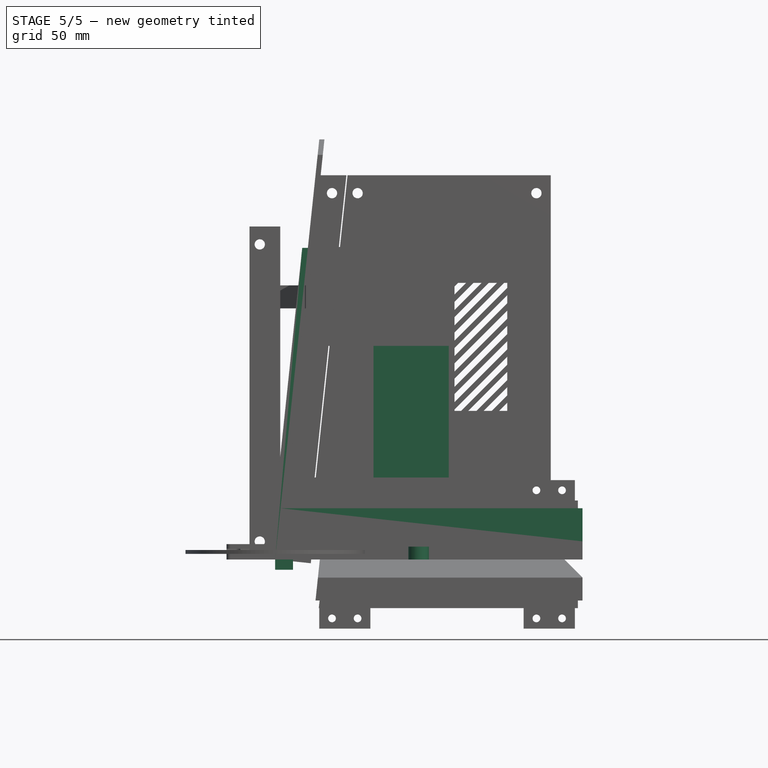
[diagram: stage 5 of 5 — front view after this stage's code; geometry added in this stage tinted green]
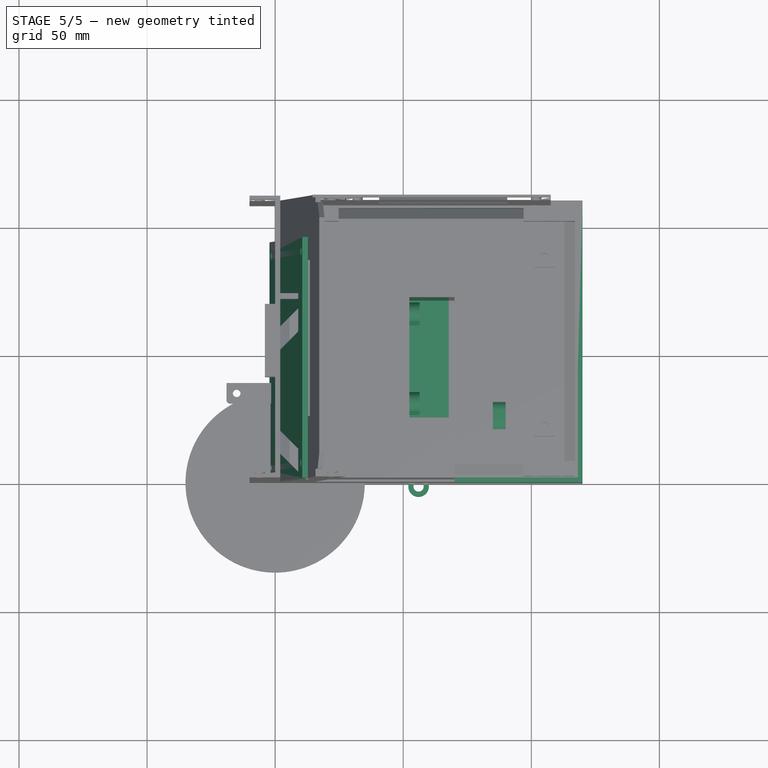
[diagram: stage 5 of 5 — top view after this stage's code; geometry added in this stage tinted green]
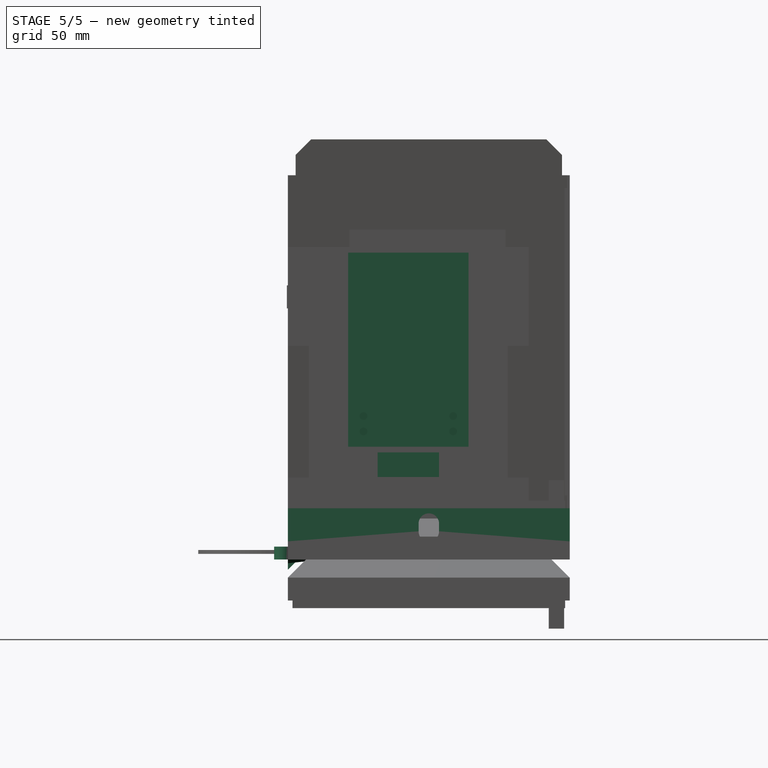
[diagram: stage 5 of 5 — right view after this stage's code; geometry added in this stage tinted green]
FEATURE [Part::Box] Box001  label="Cube001"
  AttacherType = Attacher::AttachEngine3D
  Height = 5
  Length = 64
  Placement = pos=(2,2,0) rot=(0,0,1;0rad)
  Width = 27.4
FEATURE [Part::Box] Box002  label="Cube002"
  AttacherType = Attacher::AttachEngine3D
  Height = 5
  Length = 68
  Width = 31.4
FEATURE [Part::Cut] Cut002
  Base = -> Box002
  Tool = -> Box001
FEATURE [Part::Box] Box003  label="Querstab1"
  AttacherType = Attacher::AttachEngine3D
  Height = 4
  Length = 2
  Placement = pos=(20,2,0) rot=(0,0,1;0rad)
  Width = 27.4
FEATURE [Part::Box] Box004  label="Querstab2"
  AttacherType = Attacher::AttachEngine3D
  Height = 4
  Length = 2
  Placement = pos=(33,2,0) rot=(0,0,1;0rad)
  Width = 27.4
FEATURE [Part::Box] Box005  label="Querstab3"
  AttacherType = Attacher::AttachEngine3D
  Height = 4
  Length = 2
  Placement = pos=(46,2,0) rot=(0,0,1;0rad)
  Width = 27.4
FEATURE [Part::Box] Box006  label="Cube006"
  AttacherType = Attacher::AttachEngine3D
  Height = 18
  Length = 5
  Width = 12
FEATURE [Part::Box] Box007  label="Cube007"
  AttacherType = Attacher::AttachEngine3D
  Height = 8
  Length = 12
  Placement = pos=(0,10,-1.8e-15) rot=(1,0,0;1.5708rad)
  Width = 11
FEATURE [Part::Cylinder] Cylinder
  Angle = 360
  AttacherType = Attacher::AttachEngine3D
  Height = 14
  Placement = pos=(0,6,12) rot=(0,1,0;1.5708rad)
  Radius = 4
FEATURE [Part::MultiFuse] Fusion
  Shapes = -> [Box007,Cylinder]
FEATURE [Part::Cut] Cut003
  Base = -> Box006
  Placement = pos=(66,15,0) rot=(0,0,1;0rad)
  Tool = -> Fusion
FEATURE [Part::Fillet] Fillet  label="Stromeinlass"
  Base = -> Cut003
  Edges = 2 edges r=4: [Edge11,Edge13]
  Placement = pos=(0,4.4,0) rot=(0,0,1;0rad)
FEATURE [Part::Box] Box008  label="Cube008"
  AttacherType = Attacher::AttachEngine3D
  Height = 6
  Length = 12
  Placement = pos=(65,21.4,0) rot=(0,0,1;0rad)
  Width = 8
FEATURE [Part::Cut] Cut004  label="Halterung"
  Base = -> Cut002
  Tool = -> Box008
FEATURE [Part::Feature] Cut005_solid  label="Screwhole1"
  Placement = pos=(37,-2,0) rot=(0,0,1;0rad)
  shape: bbox 8 x 8 x 5 mm, 4 faces (baked)
FEATURE [Part::Feature] Cut005_solid001  label="Screwhole2"
  Placement = pos=(37,33.4,0) rot=(0,0,1;0rad)
  shape: bbox 8 x 8 x 5 mm, 4 faces (baked)
FEATURE [Sketcher::SketchObject] Sketch001
  MapMode = 5
  Placement = pos=(0,0,0) rot=(1,0,0;1.5708rad)
  Support = -> [XZ_Plane002]
  sketch-geometry (3):
    g0: LineSegment StartX=0 StartY=0 StartZ=0 EndX=8.07757 EndY=8.07757 EndZ=0
    g1: LineSegment StartX=8.07757 StartY=8.07757 StartZ=0 EndX=8.07757 EndY=0 EndZ=0
    g2: LineSegment StartX=8.07757 StartY=0 StartZ=0 EndX=0 EndY=0 EndZ=0
  constraints (7):
    c: Coincident(g0,g1)
    c: Coincident(g1,g2)
    c: Coincident(g2,g0)
    c: Vertical(g1)
    c: Horizontal(g2)
    c: Angle(g2,g0) = 0.785398
    c: Coincident(g0,g-1)
FEATURE [PartDesign::Pad] Pad001
  Length = 31.4
  Length2 = 100
  Placement = pos=(0,0,0) rot=(1,0,0;1.5708rad)
  Profile = -> Sketch001
  Type = 0
FEATURE [PartDesign::Body] Body
  Group = -> [Sketch001,Pad001]
  Origin = -> Origin002
  Placement = pos=(64,31.4,0) rot=(0,0,1;0rad)
  Tip = -> Pad001
FEATURE [Part::MultiFuse] Fusion001
  Shapes = -> [Box003,Box004,Box005,Fillet,Cut004,Cut005_solid,Cut005_solid001]
FEATURE [Part::Cut] Cut005  label="Traeger_Cut"
  Base = -> Fusion001
  Placement = pos=(19,0.6,0) rot=(0,0,1;0rad)
  Tool = -> Body
FEATURE [App::Part] Part  label="Traeger"
  Group = -> [Box002,Box001,Cut002,Box003,Box004,Box005,Cut003,Box006,Box007,Fusion,Cylinder,Fillet,Box008,Cut004,Cut005_solid,Cut005_solid001,Fusion001,Body,Cut005]
  Origin = -> Origin
  Placement = pos=(28,29,2) rot=(0,0,1;0rad)
FEATURE [Part::Box] Box009  label="Cube009"
  AttacherType = Attacher::AttachEngine3D
  Height = 20
  Length = 120
  Width = 110
FEATURE [Part::Chamfer] Chamfer001
  Base = -> Box009
  Edges = 3 edges r=7.07: [Edge8,Edge9,Edge11]
FEATURE [Part::Box] Box010  label="Cube010"
  AttacherType = Attacher::AttachEngine3D
  Height = 18
  Length = 117
  Placement = pos=(0,3,2) rot=(0,0,1;0rad)
  Width = 104
FEATURE [Part::Chamfer] Chamfer002
  Base = -> Box010
  Edges = 3 edges r=6.07: [Edge8,Edge9,Edge11]
FEATURE [Sketcher::SketchObject] Sketch002
  Placement = pos=(0,0,0) rot=(1,0,0;1.5708rad)
  sketch-geometry (3):
    g0: LineSegment StartX=0 StartY=0 StartZ=0 EndX=0 EndY=23 EndZ=0
    g1: LineSegment StartX=0 StartY=23 StartZ=0 EndX=2.4174 EndY=23 EndZ=0
    g2: LineSegment StartX=2.4174 StartY=23 StartZ=0 EndX=0 EndY=0 EndZ=0
  constraints (8):
    c: Coincident(g0,g1)
    c: Coincident(g1,g2)
    c: Coincident(g2,g0)
    c: Coincident(g0,g-1)
    c: Vertical(g0)
    c: Horizontal(g1)
    c: Angle(g2,g0) = 0.10472
    c: DistanceY(g0,g0) = 23
FEATURE [Part::Cut] Cut006  label="Boden_Cut"
  Base = -> Chamfer001
  Tool = -> Chamfer002
FEATURE [PartDesign::Pad] Pad002
  Length = 110
  Length2 = 100
  Offset = 10
  Placement = pos=(0,0,0) rot=(1,0,0;1.5708rad)
  Profile = -> Sketch002
  Reversed = true
  Type = 0
FEATURE [Part::Cut] Cut007  label="Boden_Cut001"
  Base = -> Cut006
  Tool = -> Pad002
FEATURE [Part::Cylinder] Cylinder001
  Angle = 360
  AttacherType = Attacher::AttachEngine3D
  Height = 10
  Placement = pos=(0,0,6) rot=(0,1,0;1.5708rad)
  Radius = 4
FEATURE [Part::Cylinder] Cylinder002
  Angle = 360
  AttacherType = Attacher::AttachEngine3D
  Height = 10
  Placement = pos=(0,0,3) rot=(0,1,0;1.5708rad)
  Radius = 4
FEATURE [Part::Box] Box011  label="Cube011"
  AttacherType = Attacher::AttachEngine3D
  Height = 3
  Length = 10
  Placement = pos=(0,-4,3) rot=(0,0,1;0rad)
  Width = 8
FEATURE [Part::MultiFuse] Fusion002  label="Stromloch"
  Placement = pos=(111,55,8) rot=(0,0,1;0rad)
  Shapes = -> [Cylinder002,Cylinder001,Box011]
FEATURE [Part::Cut] Cut008  label="Boden+Stromloch"
  Base = -> Cut007
  Tool = -> Fusion002
FEATURE [Part::Box] Box020  label="Cube016"
  AttacherType = Attacher::AttachEngine3D
  Height = 7
  Length = 7
  Width = 4
FEATURE [Part::Wedge] Wedge001
  AttacherType = Attacher::AttachEngine3D
  Placement = pos=(0,0,-6) rot=(0,0,1;0rad)
  X2max = 7
  X2min = 0
  Xmax = 7
  Xmin = 0
  Ymax = 4
  Ymin = 0
  Z2max = 6
  Z2min = 6
  Zmax = 6
  Zmin = 2
FEATURE [Part::Cylinder] Cylinder014  label="Cylinder004"
  Angle = 360
  AttacherType = Attacher::AttachEngine3D
  Height = 4
  Placement = pos=(3.5,4,3.5) rot=(1,0,0;1.5708rad)
  Radius = 2
FEATURE [Part::Fillet] Fillet004
  Base = -> Box020
  Edges = 2 edges r=2: [Edge2,Edge6]
FEATURE [Part::Cut] Cut018
  Base = -> Fillet004
  Tool = -> Cylinder014
FEATURE [Part::MultiFuse] Fusion008  label="LS_Muffe1-Konstruktion"
  Shapes = -> [Wedge001,Cut018]
FEATURE [Part::Cut] Cut022  label="Verst_Schale"
  Base = -> Box021
  Placement = pos=(50.2,21.3,41.8) rot=(0,0,1;0rad)
  Tool = -> Box022
FEATURE [Part::Box] Box024  label="Cube017"
  AttacherType = Attacher::AttachEngine3D
  Height = 69
  Length = 11.8
  Placement = pos=(-11.8,0,0) rot=(0,0,1;0rad)
  Width = 28.4
FEATURE [Part::Box] Box025  label="Cube018"
  AttacherType = Attacher::AttachEngine3D
  Height = 11.8
  Length = 17.6
  Width = 28.4
FEATURE [Part::Box] Box026  label="Cube019"
  AttacherType = Attacher::AttachEngine3D
  Height = 9.6
  Length = 17.6
  Placement = pos=(0,2.2,2.2) rot=(0,0,1;0rad)
  Width = 24
FEATURE [Part::Box] Box027  label="Cube020"
  AttacherType = Attacher::AttachEngine3D
  Height = 66.8
  Length = 9.6
  Placement = pos=(-9.6,2.2,2.2) rot=(0,0,1;0rad)
  Width = 24
FEATURE [Part::Cut] Cut023
  Base = -> Box025
  Tool = -> Box026
FEATURE [Part::Cut] Cut024
  Base = -> Box024
  Tool = -> Box027
FEATURE [Part::MultiFuse] Fusion010  label="Rohr"
  Placement = pos=(50.2,32.8,30) rot=(0,0,1;0rad)
  Shapes = -> [Cut023,Cut024]
FEATURE [Sketcher::SketchObject] Sketch003
  MapMode = 5
  Placement = pos=(0,0,0) rot=(1,0,0;1.5708rad)
  Support = -> [XZ_Plane012]
  sketch-geometry (4):
    g0: LineSegment StartX=0 StartY=0 StartZ=0 EndX=12.7861 EndY=121.651 EndZ=0
    g1: LineSegment StartX=12.7861 StartY=121.651 StartZ=0 EndX=10.5761 EndY=121.651 EndZ=0
    g2: LineSegment StartX=10.5761 StartY=121.651 StartZ=0 EndX=-2.21 EndY=0 EndZ=0
    g3: LineSegment StartX=-2.21 StartY=0 StartZ=0 EndX=0 EndY=0 EndZ=0
  constraints (10):
    c: Coincident(g0,g1)
    c: Coincident(g1,g2)
    c: Coincident(g2,g3)
    c: Coincident(g3,g0)
    c: Coincident(g0,g-1)
    c: Angle(g0,g3) = 1.67552
    c: Parallel(g2,g0)
    c: Horizontal(g3)
    c: Horizontal(g1)
    c: Distance(g3) = 2.21
FEATURE [PartDesign::Pad] Pad
  Length = 94
  Length2 = 100
  Placement = pos=(0,0,0) rot=(1,0,0;1.5708rad)
  Profile = -> Sketch003
  Reversed = true
  Type = 0
FEATURE [Part::Box] Box029  label="Cube021"
  AttacherType = Attacher::AttachEngine3D
  Height = 7
  Length = 7
  Width = 7
FEATURE [Part::Wedge] Wedge
  AttacherType = Attacher::AttachEngine3D
  Placement = pos=(7,0,0) rot=(0,0,1;0rad)
  X2max = 0
  X2min = 0
  Xmax = 7
  Xmin = 0
  Ymax = 7
  Ymin = 0
  Z2max = 7
  Z2min = 0
  Zmax = 7
  Zmin = 0
FEATURE [Part::Cylinder] Cylinder018  label="Cylinder005"
  Angle = 360
  AttacherType = Attacher::AttachEngine3D
  Height = 6
  Placement = pos=(0,3.5,3.5) rot=(0,1,0;1.5708rad)
  Radius = 2
FEATURE [Part::Cut] Cut025
  Base = -> Box029
  Tool = -> Cylinder018
FEATURE [Part::MultiFuse] Fusion011
  Placement = pos=(0,0,0) rot=(0,1,0;0.10472rad)
  Shapes = -> [Cut025,Wedge]
FEATURE [Sketcher::SketchObject] Sketch004
  MapMode = 5
  Placement = pos=(0,0,0) rot=(1,0,0;1.5708rad)
  Support = -> [XZ_Plane012]
FEATURE [PartDesign::Body] Pad002Body  label="Audio_Deckel_Part"
  Group = -> [Sketch003,Pad,Sketch004]
  Origin = -> Origin012
  Tip = -> Pad
FEATURE [Part::Box] Box030  label="Cube022"
  AttacherType = Attacher::AttachEngine3D
  Height = 2
  Length = 14.2
  Placement = pos=(0,0,-2) rot=(0,0,1;0rad)
  Width = 7
FEATURE [Part::Cut] Cut026  label="AudioDeckel_Muffe"
  Base = -> Fusion011
  Tool = -> Box030
FEATURE [App::Part] Part003  label="AudioDeckel_Muffe-Konstruktion"
  Group = -> [Cylinder018,Box029,Cut025,Wedge,Fusion011,Box030,Cut026]
  Origin = -> Origin011
FEATURE [Part::Feature] Cut026_solid  label="AD_Muffe01"
  Placement = pos=(0.2,2.2,2.2) rot=(0,0,1;0rad)
  shape: bbox 14.66 x 7 x 6.962 mm, 10 faces (baked)
FEATURE [Part::Mirroring] Part__Mirroring001  label="AD_Muffe02"
  Base = (0,0,0)
  Normal = (0,1,0)
  Placement = pos=(0,94,0) rot=(0,0,1;0rad)
  Source = -> Cut026_solid
FEATURE [Part::Cylinder] Cylinder019  label="Cylinder006"
  Angle = 360
  AttacherType = Attacher::AttachEngine3D
  Height = 6
  Placement = pos=(0,3.5,3.5) rot=(0,1,0;1.5708rad)
  Radius = 2
FEATURE [Part::Wedge] Wedge002
  AttacherType = Attacher::AttachEngine3D
  Placement = pos=(7,0,0) rot=(0,0,1;0rad)
  X2max = 0
  X2min = 0
  Xmax = 7
  Xmin = 0
  Ymax = 7
  Ymin = 0
  Z2max = 7
  Z2min = 0
  Zmax = 7
  Zmin = 0
FEATURE [Part::Box] Box032  label="Cube024"
  AttacherType = Attacher::AttachEngine3D
  Height = 7
  Length = 7
  Width = 7
FEATURE [Part::Cut] Cut027
  Base = -> Box032
  Tool = -> Cylinder019
FEATURE [Part::MultiFuse] Fusion012
  Placement = pos=(0,0,0) rot=(0,1,0;0.10472rad)
  Shapes = -> [Cut027,Wedge002]
FEATURE [App::Part] Part004  label="AudioDeckel_Muffe-Konstruktion2"
  Group = -> [Cylinder019,Box032,Cut027,Wedge002,Fusion012]
  Origin = -> Origin013
FEATURE [Part::Feature] Fusion012_solid  label="AD_Muffe03"
  Placement = pos=(11.9,2.2,112.8) rot=(0,0,1;0rad)
  shape: bbox 14.66 x 7 x 8.425 mm, 11 faces (baked)
FEATURE [Part::Mirroring] Part__Mirroring002  label="AD_Muffe03 (Mirror #3)"
  Base = (0,0,0)
  Normal = (0,1,0)
  Placement = pos=(0,94,0) rot=(0,0,1;0rad)
  Source = -> Fusion012_solid
FEATURE [Part::Cylinder] Cylinder020  label="Loch1"
  Angle = 360
  AttacherType = Attacher::AttachEngine3D
  Height = 4
  Placement = pos=(-2.3,5.7,5.9) rot=(0,1,0;1.67552rad)
  Radius = 1.6
FEATURE [Part::Cylinder] Cylinder021  label="Loch2"
  Angle = 360
  AttacherType = Attacher::AttachEngine3D
  Height = 4
  Placement = pos=(10,88.3,116.5) rot=(0,1,0;1.67552rad)
  Radius = 1.6
FEATURE [Part::Cylinder] Cylinder022  label="Loch3"
  Angle = 360
  AttacherType = Attacher::AttachEngine3D
  Height = 4
  Placement = pos=(-2.3,88.3,5.9) rot=(0,1,0;1.67552rad)
  Radius = 1.6
FEATURE [Part::Cylinder] Cylinder023  label="Loch4"
  Angle = 360
  AttacherType = Attacher::AttachEngine3D
  Height = 4
  Placement = pos=(10,5.7,116.5) rot=(0,1,0;1.67552rad)
  Radius = 1.6
FEATURE [Part::MultiFuse] Fusion013  label="Löcher"
  Shapes = -> [Cylinder020,Cylinder021,Cylinder022,Cylinder023]
FEATURE [Part::Cut] Cut028  label="AD_Deckel_Loecher"
  Base = -> Pad002Body
  Tool = -> Fusion013
FEATURE [App::Part] Part005  label="Audio_Deckel"
  Group = -> [Pad002Body,Cylinder020,Cylinder021,Cylinder022,Cylinder023,Fusion013,Cut028]
  Origin = -> Origin014
FEATURE [Part::Feature] Cut029_solid  label="Verst_Muffe1"
  Placement = pos=(2.2,0,0) rot=(0,0,1;0rad)
  shape: bbox 4 x 8 x 8 mm, 4 faces (baked)
FEATURE [Part::Feature] Cut029_solid001  label="Verst_Muffe2"
  Placement = pos=(2.2,35,0) rot=(0,0,1;0rad)
  shape: bbox 4 x 8 x 8 mm, 4 faces (baked)
FEATURE [Part::Feature] Cut029_solid002  label="Verst_Muffe3"
  Placement = pos=(2.2,35,-48) rot=(0,0,1;0rad)
  shape: bbox 4 x 8 x 8 mm, 4 faces (baked)
FEATURE [Part::Feature] Cut029_solid003  label="Verst_Muffe4"
  Placement = pos=(2.2,0,-48) rot=(0,0,1;0rad)
  shape: bbox 4 x 8 x 8 mm, 4 faces (baked)
FEATURE [Part::MultiFuse] Fusion014  label="Muffen"
  Placement = pos=(0,0,15.4) rot=(0,0,1;0rad)
  Shapes = -> [Cut029_solid,Cut029_solid001,Cut029_solid002,Cut029_solid003]
FEATURE [Part::Cut] Cut029  label="Verst_Schale_Loecher"
  Base = -> Cut022
  Tool = -> Fusion015
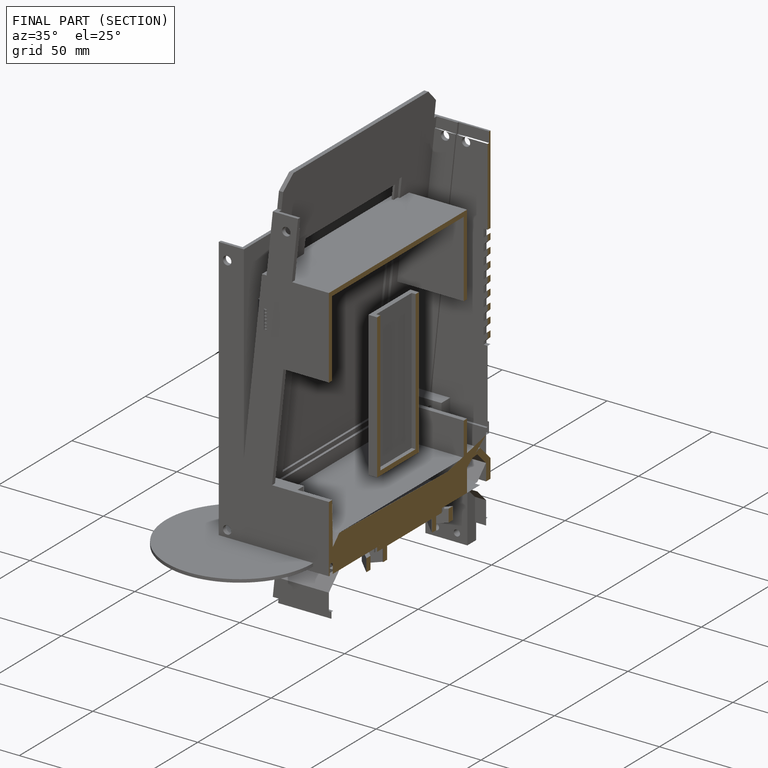
[diagram: finished part — half-section view (interior)]
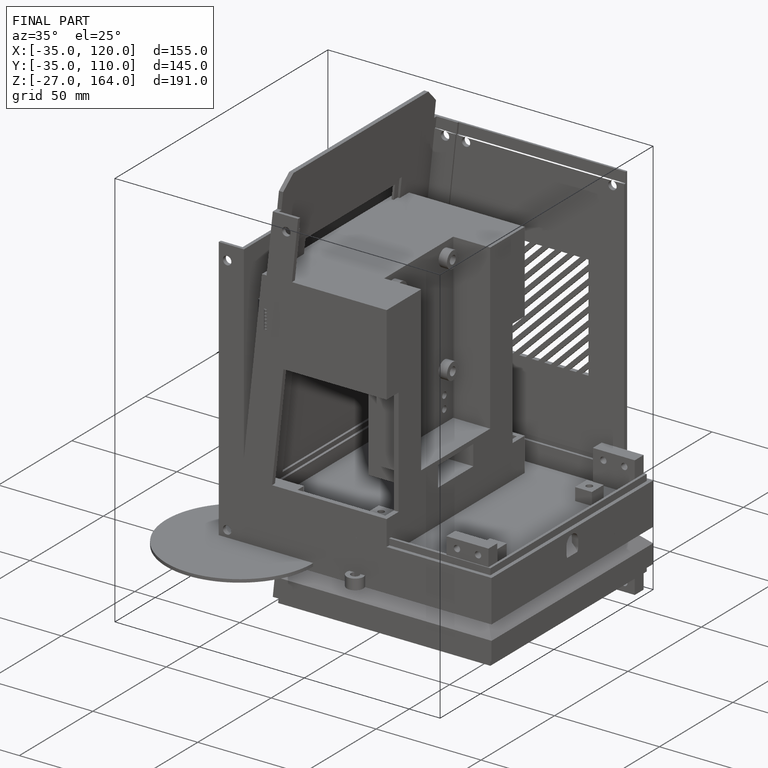
[diagram: finished part — iso view with bounding-box wireframe]
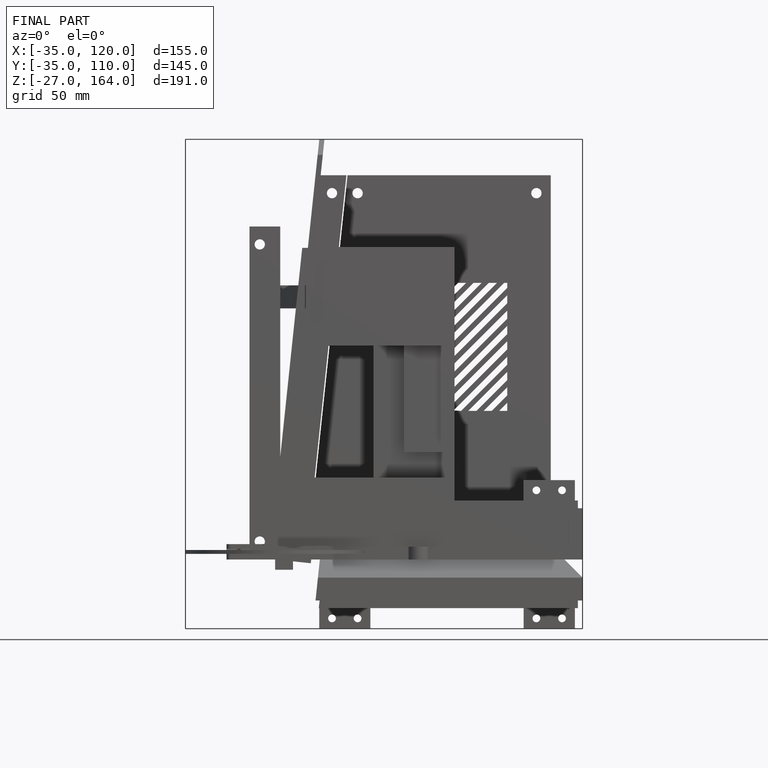
[diagram: finished part — front view with bounding-box wireframe]
